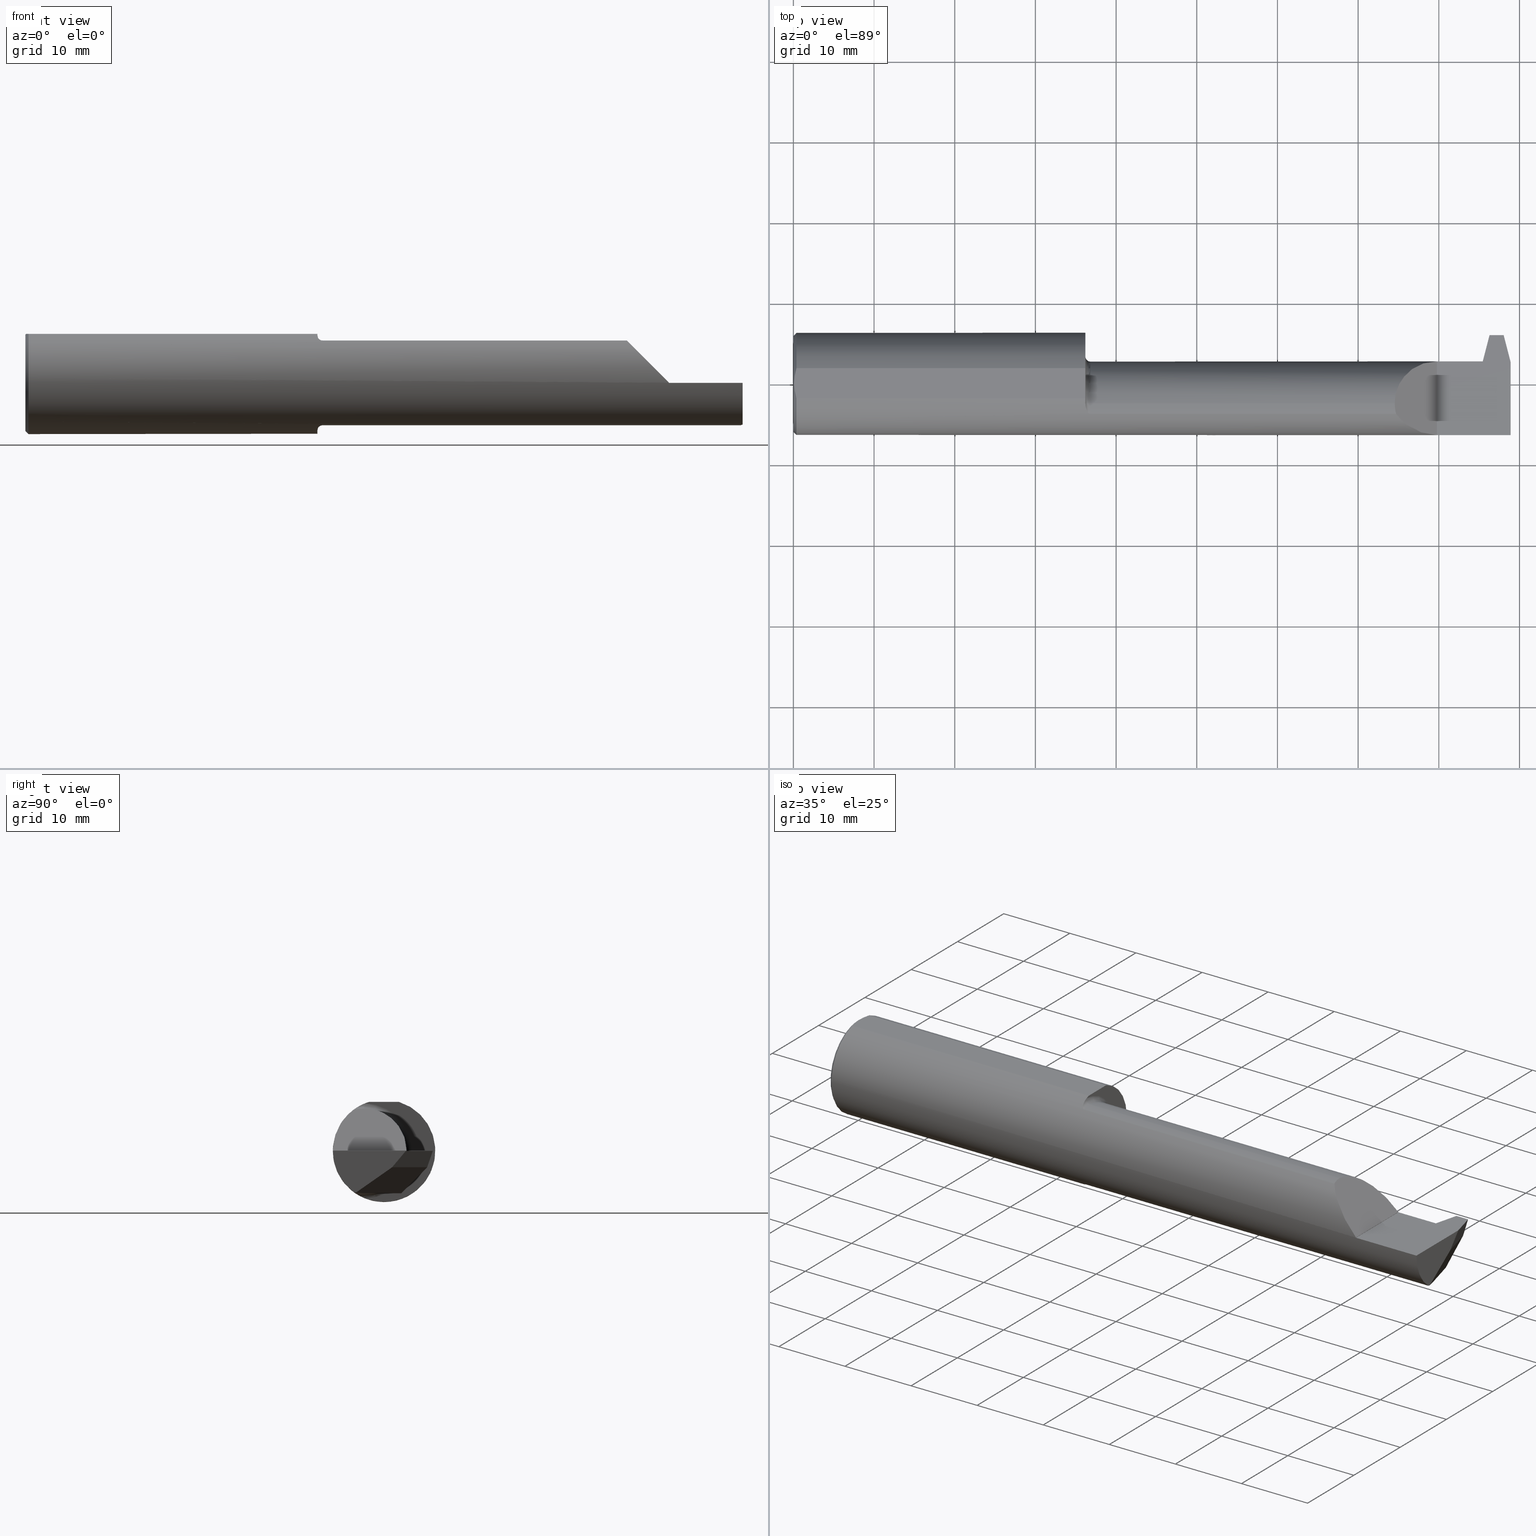
[diagram: canonical four-view strip — front | top / right | iso, engineering-drawing reading convention]
A machine part, canonical four-view strip (front | top / right | iso — engineering-drawing reading convention). The complete STEP part file that produces these views, byte-faithful:
ISO-10303-21;
HEADER;
FILE_DESCRIPTION (( 'STEP AP203' ),
    '1' );
FILE_NAME ('231081-FAT4902000-5.STEP',
    '2024-05-24T15:40:58',
    ( '' ),
    ( '' ),
    'SwSTEP 2.0',
    'SolidWorks 2022',
    '' );
FILE_SCHEMA (( 'CONFIG_CONTROL_DESIGN' ));
ENDSEC;

DATA;
#1 = CARTESIAN_POINT ( 'NONE',  ( 3.435081469452306191, 0.8665721776455815872, 0.3232974061439807811 ) ) ;
#2 = ORIENTED_EDGE ( 'NONE', *, *, #686, .F. ) ;
#3 = CARTESIAN_POINT ( 'NONE',  ( 0.01500000000000024925, 0.07331916529803100824, 0.2388500000000000345 ) ) ;
#4 = CYLINDRICAL_SURFACE ( 'NONE', #804, 0.2070000000000000173 ) ;
#5 = LINE ( 'NONE', #866, #589 ) ;
#6 = VECTOR ( 'NONE', #195, 39.37007874015748143 ) ;
#7 = ORIENTED_EDGE ( 'NONE', *, *, #380, .T. ) ;
#8 = CARTESIAN_POINT ( 'NONE',  ( 1.424999999999999600, 0.07331916529803114702, 0.2388499999999999790 ) ) ;
#9 = APPROVAL_DATE_TIME ( #371, #255 ) ;
#10 = ORIENTED_EDGE ( 'NONE', *, *, #611, .F. ) ;
#11 = VECTOR ( 'NONE', #416, 39.37007874015748143 ) ;
#12 = PLANE ( 'NONE',  #576 ) ;
#13 = EDGE_CURVE ( 'NONE', #912, #92, #97, .T. ) ;
#14 =( CONVERSION_BASED_UNIT ( 'INCH', #591 ) LENGTH_UNIT ( ) NAMED_UNIT ( #402 ) );
#15 = ADVANCED_FACE ( 'NONE', ( #707 ), #338, .F. ) ;
#16 = COORDINATED_UNIVERSAL_TIME_OFFSET ( 8, 0, .BEHIND. ) ;
#17 = EDGE_LOOP ( 'NONE', ( #257, #205, #894, #669, #826, #377 ) ) ;
#18 = VERTEX_POINT ( 'NONE', #126 ) ;
#19 = CARTESIAN_POINT ( 'NONE',  ( 3.356905148354086155, 0.09266310188211818177, -0.08326934739156952037 ) ) ;
#20 = ORIENTED_EDGE ( 'NONE', *, *, #381, .F. ) ;
#21 = DIRECTION ( 'NONE',  ( 1.000000000000000000, -0.000000000000000000, -0.000000000000000000 ) ) ;
#22 = AXIS2_PLACEMENT_3D ( 'NONE', #920, #476, #407 ) ;
#23 =( NAMED_UNIT ( * ) PLANE_ANGLE_UNIT ( ) SI_UNIT ( $, .RADIAN. ) );
#24 = ORIENTED_EDGE ( 'NONE', *, *, #449, .T. ) ;
#25 = EDGE_LOOP ( 'NONE', ( #114, #598, #175, #587 ) ) ;
#26 = DIRECTION ( 'NONE',  ( 0.2055210070593990190, 0.000000000000000000, 0.9786527043120508695 ) ) ;
#27 = EDGE_LOOP ( 'NONE', ( #763, #594, #461 ) ) ;
#28 = CARTESIAN_POINT ( 'NONE',  ( 3.500000000000000000, -0.1363579360798589379, -0.2031947907469819348 ) ) ;
#29 = PERSON_AND_ORGANIZATION ( #374, #130 ) ;
#30 = CIRCLE ( 'NONE', #120, 0.2069999999999999618 ) ;
#31 = EDGE_CURVE ( 'NONE', #554, #751, #410, .T. ) ;
#32 = ORIENTED_EDGE ( 'NONE', *, *, #861, .T. ) ;
#33 = CARTESIAN_POINT ( 'NONE',  ( 3.331941729141267849, 0.1042368812308372000, -0.05692852818758709771 ) ) ;
#34 = AXIS2_PLACEMENT_3D ( 'NONE', #225, #506, #70 ) ;
#35 = PERSON_AND_ORGANIZATION_ROLE ( 'classification_officer' ) ;
#36 = ORIENTED_EDGE ( 'NONE', *, *, #81, .T. ) ;
#37 = EDGE_LOOP ( 'NONE', ( #648, #475, #241, #307, #202, #245, #60, #941 ) ) ;
#38 = CARTESIAN_POINT ( 'NONE',  ( 3.488377121087911537, -0.09685000000000003328, -0.2069999999999999341 ) ) ;
#39 = DIRECTION ( 'NONE',  ( 1.000000000000000000, 0.000000000000000000, 0.000000000000000000 ) ) ;
#40 = ORIENTED_EDGE ( 'NONE', *, *, #13, .T. ) ;
#41 = VERTEX_POINT ( 'NONE', #344 ) ;
#42 = CARTESIAN_POINT ( 'NONE',  ( 3.139999999999999680, 0.2999999999999999889, -6.123031769111886291E-17 ) ) ;
#43 = CARTESIAN_POINT ( 'NONE',  ( 1.425056834358316094, -0.09685000000000180964, 0.2303152187763536640 ) ) ;
#44 = AXIS2_PLACEMENT_3D ( 'NONE', #260, #39, #53 ) ;
#45 = CC_DESIGN_APPROVAL ( #559, ( #623 ) ) ;
#46 = DIRECTION ( 'NONE',  ( 0.000000000000000000, -1.000000000000000000, 0.000000000000000000 ) ) ;
#47 = EDGE_CURVE ( 'NONE', #185, #372, #634, .T. ) ;
#48 = VECTOR ( 'NONE', #220, 39.37007874015748143 ) ;
#49 = DIRECTION ( 'NONE',  ( -0.000000000000000000, 0.8191520442889890230, 0.5735764363510500452 ) ) ;
#50 = EDGE_CURVE ( 'NONE', #758, #18, #266, .T. ) ;
#51 = DIRECTION ( 'NONE',  ( -1.000000000000000000, -0.000000000000000000, -0.000000000000000000 ) ) ;
#52 = CARTESIAN_POINT ( 'NONE',  ( 3.397000000000001130, 0.2381499999999843742, -6.123031769111886291E-17 ) ) ;
#53 = DIRECTION ( 'NONE',  ( 0.000000000000000000, 0.000000000000000000, -1.000000000000000000 ) ) ;
#54 = AXIS2_PLACEMENT_3D ( 'NONE', #630, #484, #775 ) ;
#55 = DIRECTION ( 'NONE',  ( -1.000000000000000000, -0.000000000000000000, -0.000000000000000000 ) ) ;
#56 = DIRECTION ( 'NONE',  ( 0.000000000000000000, -0.6426264403010661930, -0.7661796514042774620 ) ) ;
#57 = FACE_OUTER_BOUND ( 'NONE', #268, .T. ) ;
#58 = LINE ( 'NONE', #203, #650 ) ;
#59 = AXIS2_PLACEMENT_3D ( 'NONE', #510, #803, #163 ) ;
#60 = ORIENTED_EDGE ( 'NONE', *, *, #553, .T. ) ;
#61 = DIRECTION ( 'NONE',  ( 0.000000000000000000, 0.000000000000000000, 1.000000000000000000 ) ) ;
#62 = CONICAL_SURFACE ( 'NONE', #714, 0.2498499999999999888, 0.7853981633974460586 ) ;
#63 = CARTESIAN_POINT ( 'NONE',  ( 3.488377121087911537, -0.09685000000000003328, -0.2069999999999999341 ) ) ;
#64 = EDGE_LOOP ( 'NONE', ( #171, #517, #569, #683 ) ) ;
#65 = FACE_OUTER_BOUND ( 'NONE', #816, .T. ) ;
#66 = EDGE_CURVE ( 'NONE', #687, #92, #501, .T. ) ;
#67 = DIRECTION ( 'NONE',  ( -1.000000000000000000, -8.537024980200908593E-16, 5.140971450490672194E-31 ) ) ;
#68 = ORIENTED_EDGE ( 'NONE', *, *, #188, .T. ) ;
#69 = DIRECTION ( 'NONE',  ( 1.000000000000000000, -8.537024980200913523E-16, -0.000000000000000000 ) ) ;
#70 = DIRECTION ( 'NONE',  ( 0.000000000000000000, 0.000000000000000000, -1.000000000000000000 ) ) ;
#71 = CARTESIAN_POINT ( 'NONE',  ( 3.356905148354086155, 0.1101499999999999702, -1.200550468588724023E-18 ) ) ;
#72 = ADVANCED_FACE ( 'NONE', ( #424 ), #787, .F. ) ;
#73 = ORIENTED_EDGE ( 'NONE', *, *, #872, .F. ) ;
#74 = AXIS2_PLACEMENT_3D ( 'NONE', #315, #373, #26 ) ;
#75 = CARTESIAN_POINT ( 'NONE',  ( 1.424999999999999600, 0.1101499999999999979, -6.123031769111886291E-17 ) ) ;
#76 = CARTESIAN_POINT ( 'NONE',  ( 3.500000000000000000, -0.09685000000000001941, -0.2069999999999999341 ) ) ;
#77 = ORIENTED_EDGE ( 'NONE', *, *, #189, .F. ) ;
#78 = CARTESIAN_POINT ( 'NONE',  ( 1.425056834358315649, -0.09684999999998002151, -0.2303152187763627956 ) ) ;
#79 = APPROVAL_ROLE ( '' ) ;
#80 = ORIENTED_EDGE ( 'NONE', *, *, #647, .T. ) ;
#81 = EDGE_CURVE ( 'NONE', #468, #499, #285, .T. ) ;
#82 = DIRECTION ( 'NONE',  ( 1.000000000000000000, -0.000000000000000000, -0.000000000000000000 ) ) ;
#83 = EDGE_CURVE ( 'NONE', #913, #110, #453, .T. ) ;
#84 = VECTOR ( 'NONE', #637, 39.37007874015748143 ) ;
#85 = PLANE ( 'NONE',  #59 ) ;
#86 = APPLICATION_PROTOCOL_DEFINITION ( 'international standard', 'config_control_design', 1994, #104 ) ;
#87 = ORIENTED_EDGE ( 'NONE', *, *, #396, .T. ) ;
#88 = DIRECTION ( 'NONE',  ( 0.000000000000000000, 0.000000000000000000, -1.000000000000000000 ) ) ;
#89 = CARTESIAN_POINT ( 'NONE',  ( 3.500000000000000000, 0.2999999999999999889, -6.123031769111886291E-17 ) ) ;
#90 = CARTESIAN_POINT ( 'NONE',  ( 1.424999999999999600, -0.09282883324728960495, 0.2319651487140835522 ) ) ;
#91 = PERSON_AND_ORGANIZATION ( #374, #130 ) ;
#92 = VERTEX_POINT ( 'NONE', #868 ) ;
#93 = ORIENTED_EDGE ( 'NONE', *, *, #553, .F. ) ;
#94 = CARTESIAN_POINT ( 'NONE',  ( 1.449999999999999512, -0.09685000000000000553, 0.000000000000000000 ) ) ;
#95 = ORIENTED_EDGE ( 'NONE', *, *, #852, .T. ) ;
#96 = CARTESIAN_POINT ( 'NONE',  ( 3.139999999999999680, -0.2498463527850666721, 0.001349999999998470696 ) ) ;
#97 = CIRCLE ( 'NONE', #700, 0.2070000000000000173 ) ;
#98 = PERSON_AND_ORGANIZATION_ROLE ( 'creator' ) ;
#99 = ORIENTED_EDGE ( 'NONE', *, *, #849, .F. ) ;
#100 = ORIENTED_EDGE ( 'NONE', *, *, #259, .F. ) ;
#101 = EDGE_LOOP ( 'NONE', ( #383, #572, #681, #604, #174 ) ) ;
#102 = CARTESIAN_POINT ( 'NONE',  ( 3.139999999999999680, 0.2999999999999999889, -6.123031769111886291E-17 ) ) ;
#103 = VECTOR ( 'NONE', #568, 39.37007874015748143 ) ;
#104 = APPLICATION_CONTEXT ( 'configuration controlled 3d designs of mechanical parts and assemblies' ) ;
#105 = DATE_TIME_ROLE ( 'creation_date' ) ;
#106 = EDGE_CURVE ( 'NONE', #744, #372, #293, .T. ) ;
#107 = ORIENTED_EDGE ( 'NONE', *, *, #849, .T. ) ;
#108 = PLANE ( 'NONE',  #727 ) ;
#109 = CARTESIAN_POINT ( 'NONE',  ( 1.426742824673065346, -0.1177739016850215953, -0.2206342839570611114 ) ) ;
#110 = VERTEX_POINT ( 'NONE', #875 ) ;
#111 = FACE_OUTER_BOUND ( 'NONE', #621, .T. ) ;
#112 = CARTESIAN_POINT ( 'NONE',  ( 1.425362334957245736, -0.1076058103047661529, 0.2257922861036847917 ) ) ;
#113 = EDGE_CURVE ( 'NONE', #845, #523, #638, .T. ) ;
#114 = ORIENTED_EDGE ( 'NONE', *, *, #839, .T. ) ;
#115 = CARTESIAN_POINT ( 'NONE',  ( 3.500000000000000000, 0.06262552473439618461, -0.05252660777180581664 ) ) ;
#116 = EDGE_CURVE ( 'NONE', #491, #724, #437, .T. ) ;
#117 = CARTESIAN_POINT ( 'NONE',  ( 1.438098364138955976, -0.1431579111149089700, -0.2047855815810832314 ) ) ;
#118 = LOCAL_TIME ( 8, 40, 58.00000000000000000, #16 ) ;
#119 = DIRECTION ( 'NONE',  ( 0.000000000000000000, 0.000000000000000000, -1.000000000000000000 ) ) ;
#120 = AXIS2_PLACEMENT_3D ( 'NONE', #415, #561, #916 ) ;
#121 = AXIS2_PLACEMENT_3D ( 'NONE', #328, #909, #258 ) ;
#122 = CIRCLE ( 'NONE', #433, 0.2070000000000000173 ) ;
#123 = LINE ( 'NONE', #694, #333 ) ;
#124 =( BOUNDED_CURVE ( )  B_SPLINE_CURVE ( 3, ( #38, #688, #526, #28 ),
 .UNSPECIFIED., .F., .F. ) 
 B_SPLINE_CURVE_WITH_KNOTS ( ( 4, 4 ),
 ( 0.6108652381980200774, 0.8029030024378224217 ),
 .UNSPECIFIED. ) 
 CURVE ( )  GEOMETRIC_REPRESENTATION_ITEM ( )  RATIONAL_B_SPLINE_CURVE ( ( 1.000000000000000000, 0.9969291518527050311, 0.9969291518527050311, 1.000000000000000000 ) ) 
 REPRESENTATION_ITEM ( '' )  );
#125 = CC_DESIGN_PERSON_AND_ORGANIZATION_ASSIGNMENT ( #244, #603, ( #832 ) ) ;
#126 = CARTESIAN_POINT ( 'NONE',  ( 0.000000000000000000, 0.000000000000000000, -0.2348499999999998089 ) ) ;
#127 = LINE ( 'NONE', #776, #504 ) ;
#128 = CARTESIAN_POINT ( 'NONE',  ( 1.447020367144870701, -0.1494886164171398968, 0.2001953447552894949 ) ) ;
#129 = EDGE_CURVE ( 'NONE', #791, #252, #708, .T. ) ;
#130 = ORGANIZATION ( 'UNSPECIFIED', 'UNSPECIFIED', '' ) ;
#131 = CARTESIAN_POINT ( 'NONE',  ( 3.463839195668919402, 0.2834708276858401432, -0.007132963250969018114 ) ) ;
#132 = AXIS2_PLACEMENT_3D ( 'NONE', #493, #784, #135 ) ;
#133 = CARTESIAN_POINT ( 'NONE',  ( 1.424999999999999600, -0.09685000000000000553, 0.2070000000000000173 ) ) ;
#134 = ORIENTED_EDGE ( 'NONE', *, *, #396, .F. ) ;
#135 = DIRECTION ( 'NONE',  ( 0.000000000000000000, 0.000000000000000000, -1.000000000000000000 ) ) ;
#136 = DIRECTION ( 'NONE',  ( -0.3464677099351670120, 0.000000000000000000, -0.9380618987957461963 ) ) ;
#137 = ORIENTED_EDGE ( 'NONE', *, *, #580, .T. ) ;
#138 = DIRECTION ( 'NONE',  ( 0.000000000000000000, -0.7071067811865514585, 0.7071067811865435759 ) ) ;
#139 = LINE ( 'NONE', #280, #577 ) ;
#140 = CARTESIAN_POINT ( 'NONE',  ( 3.376905148354085728, 4.760531160169975351, 3.187995656012617918 ) ) ;
#141 = ORIENTED_EDGE ( 'NONE', *, *, #380, .F. ) ;
#142 = CIRCLE ( 'NONE', #629, 0.2348499999999998089 ) ;
#143 = CARTESIAN_POINT ( 'NONE',  ( 2.934349999999999348, -0.09685000000000000553, 0.2070000000000000173 ) ) ;
#144 = EDGE_CURVE ( 'NONE', #491, #468, #412, .T. ) ;
#145 = CARTESIAN_POINT ( 'NONE',  ( 1.449999999999999512, -0.1494886164171398968, 0.2001953447552894949 ) ) ;
#146 = EDGE_LOOP ( 'NONE', ( #389, #663, #222, #729 ) ) ;
#147 =( BOUNDED_CURVE ( )  B_SPLINE_CURVE ( 3, ( #864, #294, #425, #143 ),
 .UNSPECIFIED., .F., .T. ) 
 B_SPLINE_CURVE_WITH_KNOTS ( ( 4, 4 ),
 ( 4.718910765747612146, 6.283185307179586232 ),
 .UNSPECIFIED. ) 
 CURVE ( )  GEOMETRIC_REPRESENTATION_ITEM ( )  RATIONAL_B_SPLINE_CURVE ( ( 1.000000000000000000, 0.8062725446327766443, 0.8062725446327766443, 1.000000000000000000 ) ) 
 REPRESENTATION_ITEM ( '' )  );
#148 = CARTESIAN_POINT ( 'NONE',  ( 0.007978205860497812260, -0.04939097055354201710, 0.2388499999999999790 ) ) ;
#149 = CARTESIAN_POINT ( 'NONE',  ( 3.359999999999999876, -0.09685000000000000553, 0.000000000000000000 ) ) ;
#150 = CARTESIAN_POINT ( 'NONE',  ( 3.139999999999999680, 0.2999999999999999889, -6.123031769111886291E-17 ) ) ;
#151 = LINE ( 'NONE', #881, #464 ) ;
#152 = DIRECTION ( 'NONE',  ( 0.000000000000000000, -0.2055210070593990190, -0.9786527043120508695 ) ) ;
#153 = ORIENTED_EDGE ( 'NONE', *, *, #689, .T. ) ;
#154 = EDGE_CURVE ( 'NONE', #738, #530, #127, .T. ) ;
#155 = CARTESIAN_POINT ( 'NONE',  ( 1.424999999999999600, -0.09685000000000000553, 0.000000000000000000 ) ) ;
#156 = DIRECTION ( 'NONE',  ( -0.000000000000000000, 5.769128905172341190E-16, 1.000000000000000000 ) ) ;
#157 = PERSON_AND_ORGANIZATION ( #374, #130 ) ;
#158 = ORIENTED_EDGE ( 'NONE', *, *, #296, .F. ) ;
#159 = ORIENTED_EDGE ( 'NONE', *, *, #356, .F. ) ;
#160 = LINE ( 'NONE', #304, #942 ) ;
#161 = DIRECTION ( 'NONE',  ( -0.000000000000000000, 0.000000000000000000, 1.000000000000000000 ) ) ;
#162 = AXIS2_PLACEMENT_3D ( 'NONE', #404, #925, #911 ) ;
#163 = DIRECTION ( 'NONE',  ( -1.000000000000000000, 0.000000000000000000, 0.000000000000000000 ) ) ;
#164 = APPROVAL_PERSON_ORGANIZATION ( #29, #559, #825 ) ;
#165 = COORDINATED_UNIVERSAL_TIME_OFFSET ( 8, 0, .BEHIND. ) ;
#166 = ORIENTED_EDGE ( 'NONE', *, *, #748, .F. ) ;
#167 = ORIENTED_EDGE ( 'NONE', *, *, #342, .T. ) ;
#168 = AXIS2_PLACEMENT_3D ( 'NONE', #323, #183, #234 ) ;
#169 = CARTESIAN_POINT ( 'NONE',  ( 2.941154655244710092, -0.1494886164171397303, 0.2001953447552895782 ) ) ;
#170 = EDGE_CURVE ( 'NONE', #368, #913, #428, .T. ) ;
#171 = ORIENTED_EDGE ( 'NONE', *, *, #13, .F. ) ;
#172 = FACE_OUTER_BOUND ( 'NONE', #64, .T. ) ;
#173 = CARTESIAN_POINT ( 'NONE',  ( 0.000000000000000000, 0.000000000000000000, 0.000000000000000000 ) ) ;
#174 = ORIENTED_EDGE ( 'NONE', *, *, #31, .F. ) ;
#175 = ORIENTED_EDGE ( 'NONE', *, *, #129, .T. ) ;
#176 = CARTESIAN_POINT ( 'NONE',  ( 3.500000000000000000, -0.2498499999999999055, -6.123031769111886291E-17 ) ) ;
#177 = VECTOR ( 'NONE', #224, 39.37007874015748143 ) ;
#178 = EDGE_CURVE ( 'NONE', #41, #468, #914, .T. ) ;
#179 = CALENDAR_DATE ( 2024, 24, 5 ) ;
#180 = ORIENTED_EDGE ( 'NONE', *, *, #170, .T. ) ;
#181 = AXIS2_PLACEMENT_3D ( 'NONE', #332, #639, #857 ) ;
#182 = VERTEX_POINT ( 'NONE', #269 ) ;
#183 = DIRECTION ( 'NONE',  ( -0.9116190025285701992, 0.2357607042868802294, -0.3367011798954214763 ) ) ;
#184 = VECTOR ( 'NONE', #586, 39.37007874015748143 ) ;
#185 = VERTEX_POINT ( 'NONE', #411 ) ;
#186 = DIRECTION ( 'NONE',  ( -0.000000000000000000, 0.000000000000000000, -1.000000000000000000 ) ) ;
#187 = CARTESIAN_POINT ( 'NONE',  ( 1.439875278575876827, -0.1451430425960587856, 0.2033773245914853312 ) ) ;
#188 = EDGE_CURVE ( 'NONE', #18, #758, #142, .T. ) ;
#189 = EDGE_CURVE ( 'NONE', #252, #908, #850, .T. ) ;
#190 = ORIENTED_EDGE ( 'NONE', *, *, #861, .F. ) ;
#191 = DIRECTION ( 'NONE',  ( -1.000000000000000000, -0.000000000000000000, -0.000000000000000000 ) ) ;
#192 = CARTESIAN_POINT ( 'NONE',  ( 1.433603512678596648, -0.1369436784278610930, -0.2090374349053132075 ) ) ;
#193 = DIRECTION ( 'NONE',  ( -1.000000000000000000, -0.000000000000000000, -0.000000000000000000 ) ) ;
#194 = CARTESIAN_POINT ( 'NONE',  ( 1.438126455499453282, -0.1431912086441300691, 0.2047622941394796059 ) ) ;
#195 = DIRECTION ( 'NONE',  ( -0.000000000000000000, 1.000000000000000000, -5.769128905172341190E-16 ) ) ;
#196 = EDGE_CURVE ( 'NONE', #815, #331, #30, .T. ) ;
#197 = VECTOR ( 'NONE', #446, 39.37007874015748143 ) ;
#198 = CARTESIAN_POINT ( 'NONE',  ( 3.400103411012275423, 0.2501499999999999835, 0.000000000000000000 ) ) ;
#199 = EDGE_CURVE ( 'NONE', #319, #554, #200, .T. ) ;
#200 = LINE ( 'NONE', #276, #819 ) ;
#201 = FACE_OUTER_BOUND ( 'NONE', #888, .T. ) ;
#202 = ORIENTED_EDGE ( 'NONE', *, *, #66, .F. ) ;
#203 = CARTESIAN_POINT ( 'NONE',  ( 3.359999999999999876, 0.1422105680985477349, -0.04578723642496029811 ) ) ;
#204 = DIRECTION ( 'NONE',  ( 1.000000000000000000, 0.000000000000000000, 0.000000000000000000 ) ) ;
#205 = ORIENTED_EDGE ( 'NONE', *, *, #480, .F. ) ;
#206 = AXIS2_PLACEMENT_3D ( 'NONE', #632, #915, #550 ) ;
#207 = CARTESIAN_POINT ( 'NONE',  ( 1.449999999999999512, -0.09685000000000000553, 0.000000000000000000 ) ) ;
#208 = CC_DESIGN_APPROVAL ( #255, ( #573 ) ) ;
#209 = DIRECTION ( 'NONE',  ( -0.2503800040544218453, 0.9681476403781128504, 7.367790809985756574E-14 ) ) ;
#210 = ORIENTED_EDGE ( 'NONE', *, *, #144, .F. ) ;
#211 = ADVANCED_FACE ( 'NONE', ( #635 ), #923, .T. ) ;
#212 = CARTESIAN_POINT ( 'NONE',  ( 0.008000051362617503076, 0.04946541355466492484, 0.2388499999999999790 ) ) ;
#213 =( BOUNDED_CURVE ( )  B_SPLINE_CURVE ( 3, ( #251, #397, #386, #885 ),
 .UNSPECIFIED., .F., .F. ) 
 B_SPLINE_CURVE_WITH_KNOTS ( ( 4, 4 ),
 ( 0.000000000000000000, 0.2571164291075364039 ),
 .UNSPECIFIED. ) 
 CURVE ( )  GEOMETRIC_REPRESENTATION_ITEM ( )  RATIONAL_B_SPLINE_CURVE ( ( 1.000000000000000000, 0.9944985117787173978, 0.9944985117787173978, 1.000000000000000000 ) ) 
 REPRESENTATION_ITEM ( '' )  );
#214 = B_SPLINE_CURVE_WITH_KNOTS ( 'NONE', 3,
 ( #271, #847, #109, #347, #192, #117, #486, #628, #398, #917 ),
 .UNSPECIFIED., .F., .F.,
 ( 4, 2, 2, 2, 4 ),
 ( 0.0001090155944137358965, 0.0009865223614607986687, 0.001425275744984329370, 0.001644652436746094721, 0.001864029128507859855 ),
 .UNSPECIFIED. ) ;
#215 = FACE_OUTER_BOUND ( 'NONE', #532, .T. ) ;
#216 = EDGE_CURVE ( 'NONE', #499, #182, #58, .T. ) ;
#217 = CARTESIAN_POINT ( 'NONE',  ( 3.356905148354086155, 4.760531160169975351, 3.187995656012617918 ) ) ;
#218 = EDGE_LOOP ( 'NONE', ( #232, #840, #247, #322 ) ) ;
#219 = VECTOR ( 'NONE', #560, 39.37007874015748143 ) ;
#220 = DIRECTION ( 'NONE',  ( 1.000000000000000000, 0.000000000000000000, 0.000000000000000000 ) ) ;
#221 = DIRECTION ( 'NONE',  ( 0.000000000000000000, 0.2055210070593990190, 0.9786527043120508695 ) ) ;
#222 = ORIENTED_EDGE ( 'NONE', *, *, #284, .T. ) ;
#223 = AXIS2_PLACEMENT_3D ( 'NONE', #367, #355, #643 ) ;
#224 = DIRECTION ( 'NONE',  ( -1.000000000000000000, -0.000000000000000000, -0.000000000000000000 ) ) ;
#225 = CARTESIAN_POINT ( 'NONE',  ( 3.500000000000000000, 0.000000000000000000, 0.000000000000000000 ) ) ;
#226 = CARTESIAN_POINT ( 'NONE',  ( 1.424999999999999600, 0.000000000000000000, 0.000000000000000000 ) ) ;
#227 = EDGE_CURVE ( 'NONE', #672, #756, #897, .T. ) ;
#228 = VERTEX_POINT ( 'NONE', #52 ) ;
#229 = DIRECTION ( 'NONE',  ( 0.000000000000000000, 0.000000000000000000, -1.000000000000000000 ) ) ;
#230 = DIRECTION ( 'NONE',  ( -0.2503800040544567063, -0.9681476403781038576, 5.646906373630536433E-16 ) ) ;
#231 = SECURITY_CLASSIFICATION_LEVEL ( 'unclassified' ) ;
#232 = ORIENTED_EDGE ( 'NONE', *, *, #919, .T. ) ;
#233 = CARTESIAN_POINT ( 'NONE',  ( 3.407229123799221160, 0.2106037909368270455, -0.07999999999998201605 ) ) ;
#234 = DIRECTION ( 'NONE',  ( -0.3464677099351788914, 0.000000000000000000, 0.9380618987957418664 ) ) ;
#235 = PLANE ( 'NONE',  #761 ) ;
#236 = DIRECTION ( 'NONE',  ( 1.000000000000000000, 0.000000000000000000, 0.000000000000000000 ) ) ;
#237 = ORIENTED_EDGE ( 'NONE', *, *, #717, .T. ) ;
#238 = EDGE_LOOP ( 'NONE', ( #666, #166 ) ) ;
#239 = EDGE_CURVE ( 'NONE', #756, #319, #482, .T. ) ;
#240 = CARTESIAN_POINT ( 'NONE',  ( 1.424999999999999600, -0.09282883324728960495, -0.2319651487140835522 ) ) ;
#241 = ORIENTED_EDGE ( 'NONE', *, *, #106, .F. ) ;
#242 = PLANE ( 'NONE',  #361 ) ;
#243 = APPROVAL_PERSON_ORGANIZATION ( #541, #255, #79 ) ;
#244 = PERSON_AND_ORGANIZATION ( #374, #130 ) ;
#245 = ORIENTED_EDGE ( 'NONE', *, *, #717, .F. ) ;
#246 = AXIS2_PLACEMENT_3D ( 'NONE', #265, #349, #274 ) ;
#247 = ORIENTED_EDGE ( 'NONE', *, *, #239, .T. ) ;
#248 = VECTOR ( 'NONE', #49, 39.37007874015748143 ) ;
#249 = EDGE_CURVE ( 'NONE', #845, #182, #489, .T. ) ;
#250 = ORIENTED_EDGE ( 'NONE', *, *, #852, .F. ) ;
#251 = CARTESIAN_POINT ( 'NONE',  ( 2.934349999999999348, -0.09685000000000000553, 0.2070000000000000173 ) ) ;
#252 = VERTEX_POINT ( 'NONE', #692 ) ;
#253 = ORIENTED_EDGE ( 'NONE', *, *, #106, .T. ) ;
#254 = DIRECTION ( 'NONE',  ( -0.000000000000000000, 1.000000000000000000, -0.000000000000000000 ) ) ;
#255 = APPROVAL ( #837, 'UNSPECIFIED' ) ;
#256 = ORIENTED_EDGE ( 'NONE', *, *, #445, .F. ) ;
#257 = ORIENTED_EDGE ( 'NONE', *, *, #800, .F. ) ;
#258 = DIRECTION ( 'NONE',  ( 0.000000000000000000, 0.000000000000000000, -1.000000000000000000 ) ) ;
#259 = EDGE_CURVE ( 'NONE', #530, #546, #927, .T. ) ;
#260 = CARTESIAN_POINT ( 'NONE',  ( 1.449999999999999512, -0.09685000000000000553, 0.000000000000000000 ) ) ;
#261 = EDGE_LOOP ( 'NONE', ( #68, #466 ) ) ;
#262 = ORIENTED_EDGE ( 'NONE', *, *, #748, .T. ) ;
#263 = CARTESIAN_POINT ( 'NONE',  ( 1.424999999999999600, -0.09685000000000000553, 0.000000000000000000 ) ) ;
#264 = CARTESIAN_POINT ( 'NONE',  ( 3.359999999999999876, 0.1101499999999999979, 0.000000000000000000 ) ) ;
#265 = CARTESIAN_POINT ( 'NONE',  ( 1.424999999999999600, -0.09685000000000000553, 0.000000000000000000 ) ) ;
#266 = CIRCLE ( 'NONE', #583, 0.2348499999999998089 ) ;
#267 = CARTESIAN_POINT ( 'NONE',  ( 3.139999999999999680, -0.2498499999999999610, -6.123031769111885058E-17 ) ) ;
#268 = EDGE_LOOP ( 'NONE', ( #753, #838, #2 ) ) ;
#269 = CARTESIAN_POINT ( 'NONE',  ( 3.359999999999999876, -0.08802511886253058804, -0.2070000000000000451 ) ) ;
#270 = VECTOR ( 'NONE', #503, 39.37007874015748143 ) ;
#271 = CARTESIAN_POINT ( 'NONE',  ( 1.425056834358315649, -0.09684999999998002151, -0.2303152187763627956 ) ) ;
#272 = EDGE_CURVE ( 'NONE', #523, #431, #735, .T. ) ;
#273 = CARTESIAN_POINT ( 'NONE',  ( 3.363896949202450859, 0.1101499999999999702, 0.000000000000000000 ) ) ;
#274 = DIRECTION ( 'NONE',  ( 0.000000000000000000, 0.000000000000000000, 1.000000000000000000 ) ) ;
#275 = CARTESIAN_POINT ( 'NONE',  ( 1.433621117101776532, -0.1369789607150102007, 0.2090142917562188285 ) ) ;
#276 = CARTESIAN_POINT ( 'NONE',  ( 1.424999999999999600, 0.1000000000000000056, 0.2388499999999999790 ) ) ;
#277 = DIRECTION ( 'NONE',  ( 0.000000000000000000, 0.000000000000000000, -1.000000000000000000 ) ) ;
#278 = ORIENTED_EDGE ( 'NONE', *, *, #363, .T. ) ;
#279 = CARTESIAN_POINT ( 'NONE',  ( 1.424999999999999600, -0.08773859972320467715, -0.2067993771388008939 ) ) ;
#280 = CARTESIAN_POINT ( 'NONE',  ( 0.01500000000000024925, 0.000000000000000000, -0.2498499999999999888 ) ) ;
#281 = PLANE ( 'NONE',  #678 ) ;
#282 = ADVANCED_FACE ( 'NONE', ( #479 ), #548, .F. ) ;
#283 = EDGE_LOOP ( 'NONE', ( #326, #599, #237, #786, #674, #898, #392, #399, #327, #455, #615, #180, #153, #801, #883, #418 ) ) ;
#284 = EDGE_CURVE ( 'NONE', #436, #834, #343, .T. ) ;
#285 = LINE ( 'NONE', #279, #292 ) ;
#286 = CC_DESIGN_SECURITY_CLASSIFICATION ( #573, ( #623 ) ) ;
#287 = AXIS2_PLACEMENT_3D ( 'NONE', #899, #21, #537 ) ;
#288 = CARTESIAN_POINT ( 'NONE',  ( 3.465999999999998860, 0.2381499999999832640, 0.000000000000000000 ) ) ;
#289 = DIRECTION ( 'NONE',  ( 0.000000000000000000, 0.000000000000000000, 1.000000000000000000 ) ) ;
#290 = DIRECTION ( 'NONE',  ( 1.000000000000000000, 0.000000000000000000, 0.000000000000000000 ) ) ;
#291 = ORIENTED_EDGE ( 'NONE', *, *, #449, .F. ) ;
#292 = VECTOR ( 'NONE', #574, 39.37007874015748143 ) ;
#293 = LINE ( 'NONE', #584, #830 ) ;
#294 = CARTESIAN_POINT ( 'NONE',  ( 3.019370878431648197, 0.1093588693857058258, 0.1219791215683498214 ) ) ;
#295 = LOCAL_TIME ( 8, 40, 58.00000000000000000, #165 ) ;
#296 = EDGE_CURVE ( 'NONE', #110, #751, #938, .T. ) ;
#297 = DIRECTION ( 'NONE',  ( 0.000000000000000000, 0.000000000000000000, 1.000000000000000000 ) ) ;
#298 = ORIENTED_EDGE ( 'NONE', *, *, #50, .F. ) ;
#299 = CARTESIAN_POINT ( 'NONE',  ( 1.425056834358316094, -0.09685000000000180964, 0.2303152187763536640 ) ) ;
#300 = CARTESIAN_POINT ( 'NONE',  ( 3.139999999999999680, 0.1101455977792765162, 0.001349999999998470696 ) ) ;
#301 = AXIS2_PLACEMENT_3D ( 'NONE', #860, #204, #785 ) ;
#302 = DIRECTION ( 'NONE',  ( 0.000000000000000000, 0.000000000000000000, 1.000000000000000000 ) ) ;
#303 = VERTEX_POINT ( 'NONE', #697 ) ;
#304 = CARTESIAN_POINT ( 'NONE',  ( 3.397984886198644805, 0.2940908421892548530, 0.003487051252445820884 ) ) ;
#305 = CARTESIAN_POINT ( 'NONE',  ( 1.425056834358316094, -0.09685000000000180964, 0.2303152187763536640 ) ) ;
#306 = ORIENTED_EDGE ( 'NONE', *, *, #408, .T. ) ;
#307 = ORIENTED_EDGE ( 'NONE', *, *, #363, .F. ) ;
#308 = CARTESIAN_POINT ( 'NONE',  ( 3.376905148354085728, -0.08802511886253103213, -0.2070000000000002671 ) ) ;
#309 = VERTEX_POINT ( 'NONE', #299 ) ;
#310 = LINE ( 'NONE', #811, #527 ) ;
#311 = APPLICATION_PROTOCOL_DEFINITION ( 'international standard', 'config_control_design', 1994, #760 ) ;
#312 = EDGE_CURVE ( 'NONE', #815, #653, #151, .T. ) ;
#313 = ORIENTED_EDGE ( 'NONE', *, *, #259, .T. ) ;
#314 = ORIENTED_EDGE ( 'NONE', *, *, #188, .F. ) ;
#315 = CARTESIAN_POINT ( 'NONE',  ( 3.343896949202450841, 0.1101499999999999840, 0.000000000000000000 ) ) ;
#316 = ORIENTED_EDGE ( 'NONE', *, *, #445, .T. ) ;
#317 = LINE ( 'NONE', #401, #248 ) ;
#318 = COORDINATED_UNIVERSAL_TIME_OFFSET ( 8, 0, .BEHIND. ) ;
#319 = VERTEX_POINT ( 'NONE', #8 ) ;
#320 = AXIS2_PLACEMENT_3D ( 'NONE', #263, #846, #403 ) ;
#321 = VECTOR ( 'NONE', #254, 39.37007874015748143 ) ;
#322 = ORIENTED_EDGE ( 'NONE', *, *, #199, .T. ) ;
#323 = CARTESIAN_POINT ( 'NONE',  ( 3.427918530547692466, 4.957785273113056057, 3.187995656012617918 ) ) ;
#324 = APPROVAL ( #882, 'UNSPECIFIED' ) ;
#325 = DATE_TIME_ROLE ( 'classification_date' ) ;
#326 = ORIENTED_EDGE ( 'NONE', *, *, #312, .F. ) ;
#327 = ORIENTED_EDGE ( 'NONE', *, *, #919, .F. ) ;
#328 = CARTESIAN_POINT ( 'NONE',  ( 1.449999999999999512, -0.09685000000000000553, 0.000000000000000000 ) ) ;
#329 = ADVANCED_FACE ( 'NONE', ( #215 ), #62, .T. ) ;
#330 = LINE ( 'NONE', #618, #571 ) ;
#331 = VERTEX_POINT ( 'NONE', #575 ) ;
#332 = CARTESIAN_POINT ( 'NONE',  ( 1.424999999999999600, 0.000000000000000000, 0.000000000000000000 ) ) ;
#333 = VECTOR ( 'NONE', #705, 39.37007874015748143 ) ;
#334 = PLANE ( 'NONE',  #206 ) ;
#335 = DIRECTION ( 'NONE',  ( -1.600052266976115523E-14, -0.9455185755993169572, 0.3255681544571563668 ) ) ;
#336 = EDGE_CURVE ( 'NONE', #912, #605, #438, .T. ) ;
#337 = DIRECTION ( 'NONE',  ( -0.000000000000000000, 0.000000000000000000, 1.000000000000000000 ) ) ;
#338 = PLANE ( 'NONE',  #54 ) ;
#339 = DIRECTION ( 'NONE',  ( -0.2503800040544475469, 0.9681476403781061890, -5.547658068578852737E-16 ) ) ;
#340 = AXIS2_PLACEMENT_3D ( 'NONE', #936, #138, #654 ) ;
#341 = CARTESIAN_POINT ( 'NONE',  ( 1.426763007424506791, -0.1178923264691400657, 0.2205715275921999452 ) ) ;
#342 = EDGE_CURVE ( 'NONE', #607, #530, #513, .T. ) ;
#343 = CIRCLE ( 'NONE', #660, 0.2070000000000000173 ) ;
#344 = CARTESIAN_POINT ( 'NONE',  ( 3.356905148354086155, 0.09334967799372934083, -0.07999999999999067579 ) ) ;
#345 = DIRECTION ( 'NONE',  ( 0.000000000000000000, -0.8191520442889890230, -0.5735764363510501562 ) ) ;
#346 = CIRCLE ( 'NONE', #878, 0.02500000000000000486 ) ;
#347 = CARTESIAN_POINT ( 'NONE',  ( 1.431527936142122925, -0.1322095316791234987, -0.2120777013314375792 ) ) ;
#348 = CARTESIAN_POINT ( 'NONE',  ( 0.004000000000000164882, -8.838795650998935986E-18, 0.2388499999999999790 ) ) ;
#349 = DIRECTION ( 'NONE',  ( -1.000000000000000000, -0.000000000000000000, -0.000000000000000000 ) ) ;
#350 = AXIS2_PLACEMENT_3D ( 'NONE', #226, #879, #597 ) ;
#351 = LINE ( 'NONE', #494, #471 ) ;
#352 = ORIENTED_EDGE ( 'NONE', *, *, #336, .F. ) ;
#353 = FACE_OUTER_BOUND ( 'NONE', #871, .T. ) ;
#354 = ADVANCED_FACE ( 'NONE', ( #588 ), #4, .T. ) ;
#355 = DIRECTION ( 'NONE',  ( -1.000000000000000000, -0.000000000000000000, -0.000000000000000000 ) ) ;
#356 = EDGE_CURVE ( 'NONE', #791, #228, #792, .T. ) ;
#357 = VERTEX_POINT ( 'NONE', #432 ) ;
#358 = PLANE ( 'NONE',  #34 ) ;
#359 = CARTESIAN_POINT ( 'NONE',  ( 1.449999999999999512, -0.09684999999999996390, 0.2320000000000000118 ) ) ;
#360 = CARTESIAN_POINT ( 'NONE',  ( 3.139999999999999680, 0.2999999999999999889, 0.001349999999998470696 ) ) ;
#361 = AXIS2_PLACEMENT_3D ( 'NONE', #617, #613, #458 ) ;
#362 = CARTESIAN_POINT ( 'NONE',  ( 3.359999999999999876, -0.09685000000000001941, -0.2069999999999999341 ) ) ;
#363 = EDGE_CURVE ( 'NONE', #92, #744, #796, .T. ) ;
#364 = ORIENTED_EDGE ( 'NONE', *, *, #144, .T. ) ;
#365 = ADVANCED_FACE ( 'NONE', ( #353 ), #642, .T. ) ;
#366 = DIRECTION ( 'NONE',  ( 0.7071067811865490160, 0.000000000000000000, -0.7071067811865459074 ) ) ;
#367 = CARTESIAN_POINT ( 'NONE',  ( 3.139999999999999680, 0.000000000000000000, 0.000000000000000000 ) ) ;
#368 = VERTEX_POINT ( 'NONE', #802 ) ;
#369 = CARTESIAN_POINT ( 'NONE',  ( 2.988914555052664124, -0.2134487348307804178, 0.1524354449473349915 ) ) ;
#370 =( LENGTH_UNIT ( ) NAMED_UNIT ( * ) SI_UNIT ( $, .METRE. ) );
#371 = DATE_AND_TIME ( #732, #118 ) ;
#372 = VERTEX_POINT ( 'NONE', #932 ) ;
#373 = DIRECTION ( 'NONE',  ( -0.9786527043120508695, -3.055463344878836037E-15, 0.2055210070593990190 ) ) ;
#374 = PERSON ( 'UNSPECIFIED', 'UNSPECIFIED', 'UNSPECIFIED', ('UNSPECIFIED'), ('UNSPECIFIED'), ('UNSPECIFIED') ) ;
#375 = DIRECTION ( 'NONE',  ( 0.000000000000000000, -1.000000000000000000, 5.769128905172341190E-16 ) ) ;
#376 = EDGE_LOOP ( 'NONE', ( #352, #867, #715, #644 ) ) ;
#377 = ORIENTED_EDGE ( 'NONE', *, *, #940, .F. ) ;
#378 = PLANE ( 'NONE',  #74 ) ;
#379 = DIRECTION ( 'NONE',  ( 0.2503800040544200689, 0.9681476403781131834, 1.053219951395813768E-13 ) ) ;
#380 = EDGE_CURVE ( 'NONE', #18, #368, #139, .T. ) ;
#381 = EDGE_CURVE ( 'NONE', #912, #303, #147, .T. ) ;
#382 = EDGE_LOOP ( 'NONE', ( #99, #889, #400 ) ) ;
#383 = ORIENTED_EDGE ( 'NONE', *, *, #199, .F. ) ;
#384 = VECTOR ( 'NONE', #931, 39.37007874015748143 ) ;
#385 = CARTESIAN_POINT ( 'NONE',  ( 3.500000000000000000, 0.000000000000000000, 0.000000000000000000 ) ) ;
#386 = CARTESIAN_POINT ( 'NONE',  ( 2.936630766022310546, -0.1322833472790595488, 0.2047192339776893188 ) ) ;
#387 = PERSON_AND_ORGANIZATION ( #374, #130 ) ;
#388 = ORIENTED_EDGE ( 'NONE', *, *, #580, .F. ) ;
#389 = ORIENTED_EDGE ( 'NONE', *, *, #518, .F. ) ;
#390 = CIRCLE ( 'NONE', #223, 0.2498499999999999888 ) ;
#391 = CC_DESIGN_PERSON_AND_ORGANIZATION_ASSIGNMENT ( #91, #98, ( #623 ) ) ;
#392 = ORIENTED_EDGE ( 'NONE', *, *, #649, .T. ) ;
#393 = DIRECTION ( 'NONE',  ( -1.000000000000000000, 0.000000000000000000, 0.000000000000000000 ) ) ;
#394 = COORDINATED_UNIVERSAL_TIME_OFFSET ( 8, 0, .BEHIND. ) ;
#395 = ORIENTED_EDGE ( 'NONE', *, *, #538, .F. ) ;
#396 = EDGE_CURVE ( 'NONE', #457, #228, #651, .T. ) ;
#397 = CARTESIAN_POINT ( 'NONE',  ( 2.934349999999999348, -0.1146400775661692711, 0.2070000000000000451 ) ) ;
#398 = CARTESIAN_POINT ( 'NONE',  ( 1.447000154949638961, -0.1494886164171399523, -0.2001953447552893561 ) ) ;
#399 = ORIENTED_EDGE ( 'NONE', *, *, #940, .T. ) ;
#400 = ORIENTED_EDGE ( 'NONE', *, *, #249, .F. ) ;
#401 = CARTESIAN_POINT ( 'NONE',  ( 3.500000000000000000, 0.05060993510442058502, -0.07227847794072529697 ) ) ;
#402 = DIMENSIONAL_EXPONENTS ( 1.000000000000000000, 0.000000000000000000, 0.000000000000000000, 0.000000000000000000, 0.000000000000000000, 0.000000000000000000, 0.000000000000000000 ) ;
#403 = DIRECTION ( 'NONE',  ( 0.000000000000000000, 0.000000000000000000, -1.000000000000000000 ) ) ;
#404 = CARTESIAN_POINT ( 'NONE',  ( 3.500000000000000000, 0.000000000000000000, 0.000000000000000000 ) ) ;
#405 = TOROIDAL_SURFACE ( 'NONE', #121, 0.2320000000000000118, 0.02500000000000000139 ) ;
#406 = VECTOR ( 'NONE', #429, 39.37007874015748143 ) ;
#407 = DIRECTION ( 'NONE',  ( 0.000000000000000000, 0.000000000000000000, -1.000000000000000000 ) ) ;
#408 = EDGE_CURVE ( 'NONE', #653, #523, #122, .T. ) ;
#409 = DIRECTION ( 'NONE',  ( 0.9474803064293660926, -0.2450350680735413900, 0.2055210070593990190 ) ) ;
#410 = LINE ( 'NONE', #701, #749 ) ;
#411 = CARTESIAN_POINT ( 'NONE',  ( 3.376905148354085728, 0.09334967799372907715, -0.07999999999999095335 ) ) ;
#412 = CIRCLE ( 'NONE', #848, 0.2070000000000000173 ) ;
#413 = PLANE ( 'NONE',  #691 ) ;
#414 = LOCAL_TIME ( 8, 40, 58.00000000000000000, #318 ) ;
#415 = CARTESIAN_POINT ( 'NONE',  ( 3.500000000000000000, -0.09685000000000000553, 0.000000000000000000 ) ) ;
#416 = DIRECTION ( 'NONE',  ( -1.000000000000000000, -0.000000000000000000, -0.000000000000000000 ) ) ;
#417 = B_SPLINE_CURVE_WITH_KNOTS ( 'NONE', 3,
 ( #305, #886, #450, #90 ),
 .UNSPECIFIED., .F., .F.,
 ( 4, 4 ),
 ( 0.001785983475866871400, 0.001896829427359320941 ),
 .UNSPECIFIED. ) ;
#418 = ORIENTED_EDGE ( 'NONE', *, *, #686, .T. ) ;
#419 = ADVANCED_FACE ( 'NONE', ( #65 ), #358, .T. ) ;
#420 = CARTESIAN_POINT ( 'NONE',  ( 3.350128569999998973, 0.1730363691085627376, -0.1891037151198378119 ) ) ;
#421 = AXIS2_PLACEMENT_3D ( 'NONE', #1, #582, #136 ) ;
#422 = LINE ( 'NONE', #71, #633 ) ;
#423 = ORIENTED_EDGE ( 'NONE', *, *, #154, .T. ) ;
#424 = FACE_OUTER_BOUND ( 'NONE', #667, .T. ) ;
#425 = CARTESIAN_POINT ( 'NONE',  ( 2.934349999999999348, 0.02378168701430542764, 0.2070000000000000173 ) ) ;
#426 = B_SPLINE_CURVE_WITH_KNOTS ( 'NONE', 3,
 ( #240, #524, #818, #673 ),
 .UNSPECIFIED., .F., .F.,
 ( 4, 4 ),
 ( 0.000000000000000000, 0.0001090155944137358965 ),
 .UNSPECIFIED. ) ;
#427 = DIRECTION ( 'NONE',  ( -4.896636365183535087E-16, 0.5735764363510501562, -0.8191520442889890230 ) ) ;
#428 = CIRCLE ( 'NONE', #22, 0.2498499999999999888 ) ;
#429 = DIRECTION ( 'NONE',  ( -0.1200238624775757240, 0.3232146245633334414, 0.9386834284807350492 ) ) ;
#430 = CARTESIAN_POINT ( 'NONE',  ( 3.295463962035229066, 0.8304646351436201224, -0.07999999999992708777 ) ) ;
#431 = VERTEX_POINT ( 'NONE', #78 ) ;
#432 = CARTESIAN_POINT ( 'NONE',  ( 2.941154655244710092, -0.1494886164171397303, 0.2001953447552895782 ) ) ;
#433 = AXIS2_PLACEMENT_3D ( 'NONE', #207, #585, #873 ) ;
#434 = CARTESIAN_POINT ( 'NONE',  ( 3.343896949202450841, 0.1101499999999999840, 0.000000000000000000 ) ) ;
#435 = EDGE_CURVE ( 'NONE', #605, #357, #935, .T. ) ;
#436 = VERTEX_POINT ( 'NONE', #722 ) ;
#437 = LINE ( 'NONE', #565, #793 ) ;
#438 = LINE ( 'NONE', #360, #844 ) ;
#439 = PLANE ( 'NONE',  #539 ) ;
#440 = ORIENTED_EDGE ( 'NONE', *, *, #312, .T. ) ;
#441 = CARTESIAN_POINT ( 'NONE',  ( 0.01500000000000024925, 0.000000000000000000, 0.000000000000000000 ) ) ;
#442 = FACE_OUTER_BOUND ( 'NONE', #512, .T. ) ;
#443 = SHAPE_DEFINITION_REPRESENTATION ( #767, #765 ) ;
#444 = VERTEX_POINT ( 'NONE', #308 ) ;
#445 = EDGE_CURVE ( 'NONE', #185, #444, #595, .T. ) ;
#446 = DIRECTION ( 'NONE',  ( 0.000000000000000000, -0.8191520442889890230, -0.5735764363510501562 ) ) ;
#447 = VECTOR ( 'NONE', #477, 39.37007874015748143 ) ;
#448 = CARTESIAN_POINT ( 'NONE',  ( 3.326410051084569108, 0.09266310188211822341, -0.08326934739156954812 ) ) ;
#449 = EDGE_CURVE ( 'NONE', #457, #607, #160, .T. ) ;
#450 = CARTESIAN_POINT ( 'NONE',  ( 1.424999999999999600, -0.09417450869096335997, 0.2314266303976112160 ) ) ;
#451 = AXIS2_PLACEMENT_3D ( 'NONE', #94, #668, #519 ) ;
#452 = DATE_AND_TIME ( #902, #295 ) ;
#453 = B_SPLINE_CURVE_WITH_KNOTS ( 'NONE', 3,
 ( #3, #212, #721, #348 ),
 .UNSPECIFIED., .F., .F.,
 ( 4, 4 ),
 ( 0.005234717643982412377, 0.007106848166584642593 ),
 .UNSPECIFIED. ) ;
#454 = ORIENTED_EDGE ( 'NONE', *, *, #216, .F. ) ;
#455 = ORIENTED_EDGE ( 'NONE', *, *, #31, .T. ) ;
#456 = CARTESIAN_POINT ( 'NONE',  ( 3.356905148354086155, -0.08773859972320421918, -0.2067993771388023372 ) ) ;
#457 = VERTEX_POINT ( 'NONE', #233 ) ;
#458 = DIRECTION ( 'NONE',  ( -0.7071067811865459074, 0.000000000000000000, 0.7071067811865491270 ) ) ;
#459 = CALENDAR_DATE ( 2024, 24, 5 ) ;
#460 = EDGE_LOOP ( 'NONE', ( #930, #256, #137, #24 ) ) ;
#461 = ORIENTED_EDGE ( 'NONE', *, *, #649, .F. ) ;
#462 = CLOSED_SHELL ( 'NONE', ( #624, #877, #329, #365, #211, #354, #929, #72, #671, #698, #906, #419, #677, #492, #890, #516, #531, #534, #15, #590, #564, #706, #282, #478, #863, #551, #798, #817 ) ) ;
#463 = EDGE_LOOP ( 'NONE', ( #657, #250, #680, #934, #440, #306 ) ) ;
#464 = VECTOR ( 'NONE', #645, 39.37007874015748143 ) ;
#465 = DATE_AND_TIME ( #179, #772 ) ;
#466 = ORIENTED_EDGE ( 'NONE', *, *, #50, .T. ) ;
#467 = EDGE_CURVE ( 'NONE', #751, #368, #608, .T. ) ;
#468 = VERTEX_POINT ( 'NONE', #456 ) ;
#469 = FACE_OUTER_BOUND ( 'NONE', #376, .T. ) ;
#470 = FACE_OUTER_BOUND ( 'NONE', #25, .T. ) ;
#471 = VECTOR ( 'NONE', #230, 39.37007874015748854 ) ;
#472 = ORIENTED_EDGE ( 'NONE', *, *, #777, .F. ) ;
#473 = PLANE ( 'NONE',  #168 ) ;
#474 = CARTESIAN_POINT ( 'NONE',  ( 1.431579487302563347, -0.1323357243723022603, 0.2119991103425289680 ) ) ;
#475 = ORIENTED_EDGE ( 'NONE', *, *, #647, .F. ) ;
#476 = DIRECTION ( 'NONE',  ( 1.000000000000000000, -0.000000000000000000, -0.000000000000000000 ) ) ;
#477 = DIRECTION ( 'NONE',  ( 0.2503800040544414962, 0.9681476403781077433, -0.000000000000000000 ) ) ;
#478 = ADVANCED_FACE ( 'NONE', ( #745 ), #378, .F. ) ;
#479 = FACE_OUTER_BOUND ( 'NONE', #529, .T. ) ;
#480 = EDGE_CURVE ( 'NONE', #523, #436, #483, .T. ) ;
#481 = DIRECTION ( 'NONE',  ( 1.000000000000000000, 0.000000000000000000, 0.000000000000000000 ) ) ;
#482 = CIRCLE ( 'NONE', #181, 0.2498499999999999888 ) ;
#483 = CIRCLE ( 'NONE', #451, 0.2070000000000000173 ) ;
#484 = DIRECTION ( 'NONE',  ( 1.000000000000000000, 0.000000000000000000, 0.000000000000000000 ) ) ;
#485 = DIRECTION ( 'NONE',  ( 0.000000000000000000, 1.814633329124812327E-15, -1.000000000000000000 ) ) ;
#486 = CARTESIAN_POINT ( 'NONE',  ( 1.439804601073711998, -0.1450778299404785754, -0.2034240810360764540 ) ) ;
#487 = MANIFOLD_SOLID_BREP ( 'Cut-Sweep1', #462 ) ;
#488 = DIRECTION ( 'NONE',  ( -1.000000000000000000, -0.000000000000000000, -0.000000000000000000 ) ) ;
#489 = LINE ( 'NONE', #853, #6 ) ;
#490 = CARTESIAN_POINT ( 'NONE',  ( 3.500000000000000000, -0.08802511886253146234, -0.2069999999999999341 ) ) ;
#491 = VERTEX_POINT ( 'NONE', #19 ) ;
#492 = ADVANCED_FACE ( 'NONE', ( #664 ), #600, .T. ) ;
#493 = CARTESIAN_POINT ( 'NONE',  ( 1.449999999999999512, -0.09685000000000000553, -0.2320000000000000118 ) ) ;
#494 = CARTESIAN_POINT ( 'NONE',  ( 3.439875603841135554, 0.1554635659609677478, -0.2070000000000000728 ) ) ;
#495 = TOROIDAL_SURFACE ( 'NONE', #44, 0.2320000000000000118, 0.02500000000000000139 ) ;
#496 = ORIENTED_EDGE ( 'NONE', *, *, #170, .F. ) ;
#497 = CARTESIAN_POINT ( 'NONE',  ( 3.139999999999998792, 0.2381499999999887318, -6.123031769111886291E-17 ) ) ;
#498 = LINE ( 'NONE', #76, #184 ) ;
#499 = VERTEX_POINT ( 'NONE', #891 ) ;
#500 = EDGE_CURVE ( 'NONE', #756, #431, #426, .T. ) ;
#501 = LINE ( 'NONE', #150, #384 ) ;
#502 = DIRECTION ( 'NONE',  ( -1.000000000000000000, -0.000000000000000000, -0.000000000000000000 ) ) ;
#503 = DIRECTION ( 'NONE',  ( -1.000000000000000000, 2.580935849722115034E-14, 2.580935849722143117E-14 ) ) ;
#504 = VECTOR ( 'NONE', #339, 39.37007874015748143 ) ;
#505 = ORIENTED_EDGE ( 'NONE', *, *, #113, .T. ) ;
#506 = DIRECTION ( 'NONE',  ( 1.000000000000000000, 0.000000000000000000, 0.000000000000000000 ) ) ;
#507 = LINE ( 'NONE', #430, #797 ) ;
#508 = VECTOR ( 'NONE', #67, 39.37007874015748143 ) ;
#509 = CARTESIAN_POINT ( 'NONE',  ( 3.139999999999999680, -0.2498463527850666721, 0.001349999999998470696 ) ) ;
#510 = CARTESIAN_POINT ( 'NONE',  ( 0.000000000000000000, 0.1000000000000000056, 0.2388499999999999790 ) ) ;
#511 = CC_DESIGN_PERSON_AND_ORGANIZATION_ASSIGNMENT ( #754, #831, ( #623 ) ) ;
#512 = EDGE_LOOP ( 'NONE', ( #795, #167, #601, #95, #895, #472 ) ) ;
#513 = LINE ( 'NONE', #806, #549 ) ;
#514 = FACE_OUTER_BOUND ( 'NONE', #101, .T. ) ;
#515 = APPROVAL_DATE_TIME ( #452, #324 ) ;
#516 = ADVANCED_FACE ( 'NONE', ( #896 ), #12, .F. ) ;
#517 = ORIENTED_EDGE ( 'NONE', *, *, #336, .T. ) ;
#518 = EDGE_CURVE ( 'NONE', #303, #357, #213, .T. ) ;
#519 = DIRECTION ( 'NONE',  ( 0.000000000000000000, 0.000000000000000000, -1.000000000000000000 ) ) ;
#520 = DIRECTION ( 'NONE',  ( 0.000000000000000000, 0.000000000000000000, -1.000000000000000000 ) ) ;
#521 = CARTESIAN_POINT ( 'NONE',  ( 0.01500000000000024925, 0.07331916529803100824, 0.2388500000000000345 ) ) ;
#522 = ORIENTED_EDGE ( 'NONE', *, *, #720, .F. ) ;
#523 = VERTEX_POINT ( 'NONE', #740 ) ;
#524 = CARTESIAN_POINT ( 'NONE',  ( 1.424999999999999600, -0.09417762792835078500, -0.2314253821274770972 ) ) ;
#525 = EDGE_LOOP ( 'NONE', ( #679, #711, #262, #253, #685, #522 ) ) ;
#526 = CARTESIAN_POINT ( 'NONE',  ( 3.495695463954407334, -0.1233308849821257852, -0.2057276898443765045 ) ) ;
#527 = VECTOR ( 'NONE', #379, 39.37007874015748854 ) ;
#528 = APPROVAL_STATUS ( 'not_yet_approved' ) ;
#529 = EDGE_LOOP ( 'NONE', ( #809, #820, #87, #159 ) ) ;
#530 = VERTEX_POINT ( 'NONE', #596 ) ;
#531 = ADVANCED_FACE ( 'NONE', ( #172 ), #108, .F. ) ;
#532 = EDGE_LOOP ( 'NONE', ( #298, #32, #783, #496, #141 ) ) ;
#533 = CARTESIAN_POINT ( 'NONE',  ( 3.337854847910430411, 0.1101499999999999979, -0.02877135945258273153 ) ) ;
#534 = ADVANCED_FACE ( 'NONE', ( #469 ), #242, .F. ) ;
#535 = APPROVAL_DATE_TIME ( #750, #559 ) ;
#536 = ORIENTED_EDGE ( 'NONE', *, *, #626, .T. ) ;
#537 = DIRECTION ( 'NONE',  ( 0.000000000000000000, 0.000000000000000000, -1.000000000000000000 ) ) ;
#538 = EDGE_CURVE ( 'NONE', #724, #744, #703, .T. ) ;
#539 = AXIS2_PLACEMENT_3D ( 'NONE', #812, #156, #375 ) ;
#540 = AXIS2_PLACEMENT_3D ( 'NONE', #420, #335, #712 ) ;
#541 = PERSON_AND_ORGANIZATION ( #374, #130 ) ;
#542 = ORIENTED_EDGE ( 'NONE', *, *, #196, .T. ) ;
#543 = EDGE_LOOP ( 'NONE', ( #388, #768, #80, #134 ) ) ;
#544 = FACE_OUTER_BOUND ( 'NONE', #460, .T. ) ;
#545 = DIRECTION ( 'NONE',  ( 1.000000000000000000, -1.148053516458577334E-15, -1.401644650994603702E-15 ) ) ;
#546 = VERTEX_POINT ( 'NONE', #821 ) ;
#547 = EDGE_LOOP ( 'NONE', ( #743, #828, #210 ) ) ;
#548 = PLANE ( 'NONE',  #540 ) ;
#549 = VECTOR ( 'NONE', #726, 39.37007874015748143 ) ;
#550 = DIRECTION ( 'NONE',  ( 0.2503800040544367778, -0.9681476403781088536, 0.000000000000000000 ) ) ;
#551 = ADVANCED_FACE ( 'NONE', ( #544 ), #473, .T. ) ;
#552 = VECTOR ( 'NONE', #345, 39.37007874015748143 ) ;
#553 = EDGE_CURVE ( 'NONE', #579, #252, #904, .T. ) ;
#554 = VERTEX_POINT ( 'NONE', #841 ) ;
#555 = DIRECTION ( 'NONE',  ( 0.000000000000000000, -0.8191520442889890230, -0.5735764363510501562 ) ) ;
#556 = LINE ( 'NONE', #851, #865 ) ;
#557 = DIRECTION ( 'NONE',  ( 0.000000000000000000, 0.000000000000000000, -1.000000000000000000 ) ) ;
#558 = LINE ( 'NONE', #766, #447 ) ;
#559 = APPROVAL ( #528, 'UNSPECIFIED' ) ;
#560 = DIRECTION ( 'NONE',  ( -0.1571540165094698072, 0.2029672248372565435, 0.9664920696709331516 ) ) ;
#561 = DIRECTION ( 'NONE',  ( 1.000000000000000000, -0.000000000000000000, -0.000000000000000000 ) ) ;
#562 = CARTESIAN_POINT ( 'NONE',  ( 1.449999999999999512, -0.1494886164171398968, 0.2001953447552894949 ) ) ;
#563 = VECTOR ( 'NONE', #788, 39.37007874015748143 ) ;
#564 = ADVANCED_FACE ( 'NONE', ( #829 ), #759, .T. ) ;
#565 = CARTESIAN_POINT ( 'NONE',  ( 1.425000000000000044, 0.09266310188212133203, -0.08326934739156235943 ) ) ;
#566 = DESIGN_CONTEXT ( 'detailed design', #760, 'design' ) ;
#567 = DIRECTION ( 'NONE',  ( 0.2503800040544367778, -0.9681476403781088536, 0.000000000000000000 ) ) ;
#568 = DIRECTION ( 'NONE',  ( 0.2013133534504507050, 0.2013133534504511490, 0.9586166425871540664 ) ) ;
#569 = ORIENTED_EDGE ( 'NONE', *, *, #789, .F. ) ;
#570 = CARTESIAN_POINT ( 'NONE',  ( 3.350128570000002970, 0.2106037909368130567, -0.07999999999999694855 ) ) ;
#571 = VECTOR ( 'NONE', #545, 39.37007874015748143 ) ;
#572 = ORIENTED_EDGE ( 'NONE', *, *, #689, .F. ) ;
#573 = SECURITY_CLASSIFICATION ( '', '', #231 ) ;
#574 = DIRECTION ( 'NONE',  ( 1.000000000000000000, 0.000000000000000000, 0.000000000000000000 ) ) ;
#575 = CARTESIAN_POINT ( 'NONE',  ( 3.500000000000000000, -0.1363579360798589379, -0.2031947907469819348 ) ) ;
#576 = AXIS2_PLACEMENT_3D ( 'NONE', #42, #186, #393 ) ;
#577 = VECTOR ( 'NONE', #366, 39.37007874015748854 ) ;
#578 = DIRECTION ( 'NONE',  ( 0.000000000000000000, 0.000000000000000000, 1.000000000000000000 ) ) ;
#579 = VERTEX_POINT ( 'NONE', #176 ) ;
#580 = EDGE_CURVE ( 'NONE', #185, #457, #310, .T. ) ;
#581 = CARTESIAN_POINT ( 'NONE',  ( 3.420156025113222142, 0.1757926836392716130, -0.1810987964774536385 ) ) ;
#582 = DIRECTION ( 'NONE',  ( 0.9116190025285761944, 0.2357607042868725689, -0.3367011798954106516 ) ) ;
#583 = AXIS2_PLACEMENT_3D ( 'NONE', #856, #488, #641 ) ;
#584 = CARTESIAN_POINT ( 'NONE',  ( 3.363896949202450859, 0.1101499999999999702, 0.000000000000000000 ) ) ;
#585 = DIRECTION ( 'NONE',  ( 1.000000000000000000, 0.000000000000000000, 0.000000000000000000 ) ) ;
#586 = DIRECTION ( 'NONE',  ( -1.000000000000000000, -0.000000000000000000, -0.000000000000000000 ) ) ;
#587 = ORIENTED_EDGE ( 'NONE', *, *, #189, .T. ) ;
#588 = FACE_OUTER_BOUND ( 'NONE', #463, .T. ) ;
#589 = VECTOR ( 'NONE', #799, 39.37007874015748854 ) ;
#590 = ADVANCED_FACE ( 'NONE', ( #111 ), #695, .T. ) ;
#591 = LENGTH_MEASURE_WITH_UNIT ( LENGTH_MEASURE( 0.02539999999999999897 ), #370 );
#592 = EDGE_CURVE ( 'NONE', #791, #546, #602, .T. ) ;
#593 = PERSON_AND_ORGANIZATION_ROLE ( 'design_owner' ) ;
#594 = ORIENTED_EDGE ( 'NONE', *, *, #800, .T. ) ;
#595 = LINE ( 'NONE', #734, #197 ) ;
#596 = CARTESIAN_POINT ( 'NONE',  ( 3.441708597587969098, 0.08360379093681136187, -0.2070000000000000451 ) ) ;
#597 = DIRECTION ( 'NONE',  ( 0.000000000000000000, 0.000000000000000000, -1.000000000000000000 ) ) ;
#598 = ORIENTED_EDGE ( 'NONE', *, *, #592, .F. ) ;
#599 = ORIENTED_EDGE ( 'NONE', *, *, #636, .F. ) ;
#600 = CYLINDRICAL_SURFACE ( 'NONE', #774, 0.2498499999999999888 ) ;
#601 = ORIENTED_EDGE ( 'NONE', *, *, #154, .F. ) ;
#602 = LINE ( 'NONE', #835, #822 ) ;
#603 = PERSON_AND_ORGANIZATION_ROLE ( 'creator' ) ;
#604 = ORIENTED_EDGE ( 'NONE', *, *, #296, .T. ) ;
#605 = VERTEX_POINT ( 'NONE', #96 ) ;
#606 = DIRECTION ( 'NONE',  ( 0.000000000000000000, 0.000000000000000000, 1.000000000000000000 ) ) ;
#607 = VERTEX_POINT ( 'NONE', #893 ) ;
#608 = CIRCLE ( 'NONE', #900, 0.2498499999999999888 ) ;
#609 = DATE_AND_TIME ( #614, #414 ) ;
#610 = ORIENTED_EDGE ( 'NONE', *, *, #777, .T. ) ;
#611 = EDGE_CURVE ( 'NONE', #738, #331, #124, .T. ) ;
#612 = ORIENTED_EDGE ( 'NONE', *, *, #467, .F. ) ;
#613 = DIRECTION ( 'NONE',  ( -0.7071067811865491270, 0.000000000000000000, -0.7071067811865459074 ) ) ;
#614 = CALENDAR_DATE ( 2024, 24, 5 ) ;
#615 = ORIENTED_EDGE ( 'NONE', *, *, #467, .T. ) ;
#616 = ORIENTED_EDGE ( 'NONE', *, *, #720, .T. ) ;
#617 = CARTESIAN_POINT ( 'NONE',  ( 2.902499999999999414, 0.1000000000000000056, 0.2388499999999999790 ) ) ;
#618 = CARTESIAN_POINT ( 'NONE',  ( 3.363896949202450859, 0.09334967799372934083, -0.07999999999999068967 ) ) ;
#619 = ORIENTED_EDGE ( 'NONE', *, *, #116, .F. ) ;
#620 = AXIS2_PLACEMENT_3D ( 'NONE', #198, #409, #699 ) ;
#621 = EDGE_LOOP ( 'NONE', ( #190, #314, #7, #612, #158 ) ) ;
#622 = DIRECTION ( 'NONE',  ( 1.000000000000000000, 0.000000000000000000, 0.000000000000000000 ) ) ;
#623 = PRODUCT_DEFINITION_FORMATION_WITH_SPECIFIED_SOURCE ( 'ANY', '', #718, .NOT_KNOWN. ) ;
#624 = ADVANCED_FACE ( 'NONE', ( #684 ), #405, .F. ) ;
#625 = CARTESIAN_POINT ( 'NONE',  ( 1.449999999999999512, -0.1494886164171398968, -0.2001953447552894949 ) ) ;
#626 = EDGE_CURVE ( 'NONE', #331, #908, #317, .T. ) ;
#627 = CARTESIAN_POINT ( 'NONE',  ( 1.449999999999999512, -0.09685000000000000553, 0.000000000000000000 ) ) ;
#628 = CARTESIAN_POINT ( 'NONE',  ( 1.444219481832198060, -0.1482797491967531023, -0.2011020871690758216 ) ) ;
#629 = AXIS2_PLACEMENT_3D ( 'NONE', #702, #193, #557 ) ;
#630 = CARTESIAN_POINT ( 'NONE',  ( 0.000000000000000000, 0.000000000000000000, 0.000000000000000000 ) ) ;
#631 = CARTESIAN_POINT ( 'NONE',  ( 3.462896588987724122, 0.2501499999999999835, 0.000000000000000000 ) ) ;
#632 = CARTESIAN_POINT ( 'NONE',  ( 3.462896588987724122, 0.2501499999999999835, 0.000000000000000000 ) ) ;
#633 = VECTOR ( 'NONE', #221, 39.37007874015748143 ) ;
#634 = LINE ( 'NONE', #273, #219 ) ;
#635 = FACE_OUTER_BOUND ( 'NONE', #146, .T. ) ;
#636 = EDGE_CURVE ( 'NONE', #579, #815, #737, .T. ) ;
#637 = DIRECTION ( 'NONE',  ( -1.000000000000000000, -0.000000000000000000, -0.000000000000000000 ) ) ;
#638 = LINE ( 'NONE', #926, #177 ) ;
#639 = DIRECTION ( 'NONE',  ( 1.000000000000000000, 0.000000000000000000, 0.000000000000000000 ) ) ;
#640 = LINE ( 'NONE', #490, #508 ) ;
#641 = DIRECTION ( 'NONE',  ( 0.000000000000000000, 0.000000000000000000, -1.000000000000000000 ) ) ;
#642 = CYLINDRICAL_SURFACE ( 'NONE', #943, 0.2070000000000000173 ) ;
#643 = DIRECTION ( 'NONE',  ( 0.000000000000000000, 0.000000000000000000, 1.000000000000000000 ) ) ;
#644 = ORIENTED_EDGE ( 'NONE', *, *, #435, .F. ) ;
#645 = DIRECTION ( 'NONE',  ( -1.000000000000000000, -0.000000000000000000, -0.000000000000000000 ) ) ;
#646 = CARTESIAN_POINT ( 'NONE',  ( 3.343896949202450841, 0.1101499999999999840, 0.000000000000000000 ) ) ;
#647 = EDGE_CURVE ( 'NONE', #372, #228, #558, .T. ) ;
#648 = ORIENTED_EDGE ( 'NONE', *, *, #356, .T. ) ;
#649 = EDGE_CURVE ( 'NONE', #834, #309, #813, .T. ) ;
#650 = VECTOR ( 'NONE', #555, 39.37007874015748143 ) ;
#651 = LINE ( 'NONE', #581, #406 ) ;
#652 = PLANE ( 'NONE',  #421 ) ;
#653 = VERTEX_POINT ( 'NONE', #625 ) ;
#654 = DIRECTION ( 'NONE',  ( 0.000000000000000000, -0.7071067811865435759, -0.7071067811865514585 ) ) ;
#655 = DIRECTION ( 'NONE',  ( 1.000000000000000000, -0.000000000000000000, -0.000000000000000000 ) ) ;
#656 = CARTESIAN_POINT ( 'NONE',  ( 3.500000000000000000, -0.1494886164171398690, -0.2001953447552895227 ) ) ;
#657 = ORIENTED_EDGE ( 'NONE', *, *, #113, .F. ) ;
#658 = AXIS2_PLACEMENT_3D ( 'NONE', #173, #302, #236 ) ;
#659 = DIRECTION ( 'NONE',  ( -1.000000000000000000, -0.000000000000000000, -0.000000000000000000 ) ) ;
#660 = AXIS2_PLACEMENT_3D ( 'NONE', #627, #622, #119 ) ;
#661 = EDGE_CURVE ( 'NONE', #834, #357, #123, .T. ) ;
#662 = COORDINATED_UNIVERSAL_TIME_OFFSET ( 8, 0, .BEHIND. ) ;
#663 = ORIENTED_EDGE ( 'NONE', *, *, #872, .T. ) ;
#664 = FACE_OUTER_BOUND ( 'NONE', #283, .T. ) ;
#665 = FACE_OUTER_BOUND ( 'NONE', #525, .T. ) ;
#666 = ORIENTED_EDGE ( 'NONE', *, *, #538, .T. ) ;
#667 = EDGE_LOOP ( 'NONE', ( #291, #805, #100, #903 ) ) ;
#668 = DIRECTION ( 'NONE',  ( 1.000000000000000000, 0.000000000000000000, 0.000000000000000000 ) ) ;
#669 = ORIENTED_EDGE ( 'NONE', *, *, #500, .F. ) ;
#670 = CARTESIAN_POINT ( 'NONE',  ( 3.343896949202450841, 0.1101499999999999840, 0.000000000000000000 ) ) ;
#671 = ADVANCED_FACE ( 'NONE', ( #770 ), #413, .T. ) ;
#672 = VERTEX_POINT ( 'NONE', #858 ) ;
#673 = CARTESIAN_POINT ( 'NONE',  ( 1.425056834358315649, -0.09684999999998002151, -0.2303152187763627956 ) ) ;
#674 = ORIENTED_EDGE ( 'NONE', *, *, #435, .T. ) ;
#675 = DIRECTION ( 'NONE',  ( 1.000000000000000000, 0.000000000000000000, 0.000000000000000000 ) ) ;
#676 = PERSON_AND_ORGANIZATION ( #374, #130 ) ;
#677 = ADVANCED_FACE ( 'NONE', ( #470 ), #334, .F. ) ;
#678 = AXIS2_PLACEMENT_3D ( 'NONE', #217, #290, #277 ) ;
#679 = ORIENTED_EDGE ( 'NONE', *, *, #730, .F. ) ;
#680 = ORIENTED_EDGE ( 'NONE', *, *, #611, .T. ) ;
#681 = ORIENTED_EDGE ( 'NONE', *, *, #83, .T. ) ;
#682 = DIRECTION ( 'NONE',  ( -1.000000000000000000, 0.000000000000000000, -0.000000000000000000 ) ) ;
#683 = ORIENTED_EDGE ( 'NONE', *, *, #66, .T. ) ;
#684 = FACE_OUTER_BOUND ( 'NONE', #27, .T. ) ;
#685 = ORIENTED_EDGE ( 'NONE', *, *, #47, .F. ) ;
#686 = EDGE_CURVE ( 'NONE', #431, #653, #214, .T. ) ;
#687 = VERTEX_POINT ( 'NONE', #267 ) ;
#688 = CARTESIAN_POINT ( 'NONE',  ( 3.491809236970778940, -0.1101210074274914935, -0.2070000000000000173 ) ) ;
#689 = EDGE_CURVE ( 'NONE', #913, #319, #556, .T. ) ;
#690 = CARTESIAN_POINT ( 'NONE',  ( 1.444274813964108395, -0.1483055201436095649, 0.2010828477691846972 ) ) ;
#691 = AXIS2_PLACEMENT_3D ( 'NONE', #264, #762, #337 ) ;
#692 = CARTESIAN_POINT ( 'NONE',  ( 3.500000000000000000, 0.1066817547734200677, 0.000000000000000000 ) ) ;
#693 = LOCAL_TIME ( 8, 40, 58.00000000000000000, #394 ) ;
#694 = CARTESIAN_POINT ( 'NONE',  ( 2.392499999999999627, -0.1494886164171398968, 0.2001953447552894949 ) ) ;
#695 = CONICAL_SURFACE ( 'NONE', #287, 0.2498499999999999888, 0.7853981633974460586 ) ;
#696 = CARTESIAN_POINT ( 'NONE',  ( 3.139999999999999680, -0.09685000000000000553, 0.000000000000000000 ) ) ;
#697 = CARTESIAN_POINT ( 'NONE',  ( 2.934349999999999348, -0.09685000000000000553, 0.2070000000000000173 ) ) ;
#698 = ADVANCED_FACE ( 'NONE', ( #778 ), #773, .F. ) ;
#699 = DIRECTION ( 'NONE',  ( 0.2503800040544414407, 0.9681476403781077433, 0.000000000000000000 ) ) ;
#700 = AXIS2_PLACEMENT_3D ( 'NONE', #696, #51, #779 ) ;
#701 = CARTESIAN_POINT ( 'NONE',  ( 3.500000000000000000, -0.07331916529803116089, 0.2388499999999999790 ) ) ;
#702 = CARTESIAN_POINT ( 'NONE',  ( 0.000000000000000000, 0.000000000000000000, 0.000000000000000000 ) ) ;
#703 =( BOUNDED_CURVE ( )  B_SPLINE_CURVE ( 3, ( #448, #33, #533, #670 ),
 .UNSPECIFIED., .F., .T. ) 
 B_SPLINE_CURVE_WITH_KNOTS ( ( 4, 4 ),
 ( 1.156804228221824715, 1.570796326794882569 ),
 .UNSPECIFIED. ) 
 CURVE ( )  GEOMETRIC_REPRESENTATION_ITEM ( )  RATIONAL_B_SPLINE_CURVE ( ( 1.000000000000000000, 0.9857684695413670983, 0.9857684695413670983, 1.000000000000000000 ) ) 
 REPRESENTATION_ITEM ( '' )  );
#704 = APPROVAL_PERSON_ORGANIZATION ( #676, #324, #814 ) ;
#705 = DIRECTION ( 'NONE',  ( 1.000000000000000000, 0.000000000000000000, 0.000000000000000000 ) ) ;
#706 = ADVANCED_FACE ( 'NONE', ( #57 ), #495, .F. ) ;
#707 = FACE_OUTER_BOUND ( 'NONE', #261, .T. ) ;
#708 = LINE ( 'NONE', #631, #918 ) ;
#709 = FACE_OUTER_BOUND ( 'NONE', #862, .T. ) ;
#710 = TOROIDAL_SURFACE ( 'NONE', #301, 0.2320000000000000118, 0.02500000000000000139 ) ;
#711 = ORIENTED_EDGE ( 'NONE', *, *, #116, .T. ) ;
#712 = DIRECTION ( 'NONE',  ( 0.000000000000000000, -0.3255681544571563113, -0.9455185755993168462 ) ) ;
#713 = LINE ( 'NONE', #570, #270 ) ;
#714 = AXIS2_PLACEMENT_3D ( 'NONE', #441, #655, #229 ) ;
#715 = ORIENTED_EDGE ( 'NONE', *, *, #518, .T. ) ;
#716 = CARTESIAN_POINT ( 'NONE',  ( 0.01500000000000021108, -0.07331916529803102212, 0.2388499999999999790 ) ) ;
#717 = EDGE_CURVE ( 'NONE', #579, #687, #921, .T. ) ;
#718 = PRODUCT ( '231081-FAT4902000-5', '231081-FAT4902000-5', '', ( #808 ) ) ;
#719 = DIRECTION ( 'NONE',  ( 0.000000000000000000, 0.8191520442889890230, 0.5735764363510501562 ) ) ;
#720 = EDGE_CURVE ( 'NONE', #41, #185, #330, .T. ) ;
#721 = CARTESIAN_POINT ( 'NONE',  ( 0.004000000000000163147, 0.02507688590673094742, 0.2388499999999999790 ) ) ;
#722 = CARTESIAN_POINT ( 'NONE',  ( 1.449999999999999512, -0.09685000000000000553, 0.2070000000000000173 ) ) ;
#723 = CARTESIAN_POINT ( 'NONE',  ( 0.01500000000000021108, -0.07331916529803102212, 0.2388499999999999790 ) ) ;
#724 = VERTEX_POINT ( 'NONE', #843 ) ;
#725 = VECTOR ( 'NONE', #56, 39.37007874015748854 ) ;
#726 = DIRECTION ( 'NONE',  ( 1.000000000000000000, 0.000000000000000000, 0.000000000000000000 ) ) ;
#727 = AXIS2_PLACEMENT_3D ( 'NONE', #102, #682, #161 ) ;
#728 = CARTESIAN_POINT ( 'NONE',  ( 1.424999999999999600, -0.09282883324728960495, -0.2319651487140835522 ) ) ;
#729 = ORIENTED_EDGE ( 'NONE', *, *, #661, .T. ) ;
#730 = EDGE_CURVE ( 'NONE', #491, #41, #422, .T. ) ;
#731 = CARTESIAN_POINT ( 'NONE',  ( 3.060176953520660437, -0.2494150432560470754, 0.08117304647933920592 ) ) ;
#732 = CALENDAR_DATE ( 2024, 24, 5 ) ;
#733 = ORIENTED_EDGE ( 'NONE', *, *, #178, .F. ) ;
#734 = CARTESIAN_POINT ( 'NONE',  ( 3.376905148354085728, 4.760531160169975351, 3.187995656012617918 ) ) ;
#735 = CIRCLE ( 'NONE', #132, 0.02500000000000000486 ) ;
#736 = CARTESIAN_POINT ( 'NONE',  ( 3.500000000000000000, 0.03958245876646967337, -0.07999999999998727573 ) ) ;
#737 = CIRCLE ( 'NONE', #162, 0.2498499999999999888 ) ;
#738 = VERTEX_POINT ( 'NONE', #63 ) ;
#739 = CARTESIAN_POINT ( 'NONE',  ( 0.01500000000000024925, 0.000000000000000000, 0.000000000000000000 ) ) ;
#740 = CARTESIAN_POINT ( 'NONE',  ( 1.449999999999999512, -0.09684999999999999165, -0.2070000000000000173 ) ) ;
#741 = CARTESIAN_POINT ( 'NONE',  ( 3.363896949202450859, 0.1101499999999999702, 0.000000000000000000 ) ) ;
#742 =( NAMED_UNIT ( * ) SI_UNIT ( $, .STERADIAN. ) SOLID_ANGLE_UNIT ( ) );
#743 = ORIENTED_EDGE ( 'NONE', *, *, #730, .T. ) ;
#744 = VERTEX_POINT ( 'NONE', #434 ) ;
#745 = FACE_OUTER_BOUND ( 'NONE', #238, .T. ) ;
#746 = ORIENTED_EDGE ( 'NONE', *, *, #626, .F. ) ;
#747 = DIRECTION ( 'NONE',  ( -0.1200238624775782914, -0.3232146245633296666, -0.9386834284807361595 ) ) ;
#748 = EDGE_CURVE ( 'NONE', #724, #744, #794, .T. ) ;
#749 = VECTOR ( 'NONE', #55, 39.37007874015748143 ) ;
#750 = DATE_AND_TIME ( #459, #693 ) ;
#751 = VERTEX_POINT ( 'NONE', #723 ) ;
#752 = ORIENTED_EDGE ( 'NONE', *, *, #636, .T. ) ;
#753 = ORIENTED_EDGE ( 'NONE', *, *, #272, .F. ) ;
#754 = PERSON_AND_ORGANIZATION ( #374, #130 ) ;
#755 = AXIS2_PLACEMENT_3D ( 'NONE', #140, #427, #719 ) ;
#756 = VERTEX_POINT ( 'NONE', #728 ) ;
#757 = CC_DESIGN_PERSON_AND_ORGANIZATION_ASSIGNMENT ( #387, #35, ( #573 ) ) ;
#758 = VERTEX_POINT ( 'NONE', #790 ) ;
#759 = PLANE ( 'NONE',  #855 ) ;
#760 = APPLICATION_CONTEXT ( 'configuration controlled 3d designs of mechanical parts and assemblies' ) ;
#761 = AXIS2_PLACEMENT_3D ( 'NONE', #741, #807, #152 ) ;
#762 = DIRECTION ( 'NONE',  ( -1.000000000000000000, 0.000000000000000000, -0.000000000000000000 ) ) ;
#763 = ORIENTED_EDGE ( 'NONE', *, *, #284, .F. ) ;
#764 = CARTESIAN_POINT ( 'NONE',  ( 1.424999999999999600, 0.3101499999999999813, 0.000000000000000000 ) ) ;
#765 = ADVANCED_BREP_SHAPE_REPRESENTATION ( '231081-FAT4902000-5', ( #487, #658 ), #781 ) ;
#766 = CARTESIAN_POINT ( 'NONE',  ( 3.400103411012275423, 0.2501499999999999835, 0.000000000000000000 ) ) ;
#767 = PRODUCT_DEFINITION_SHAPE ( 'NONE', 'NONE',  #832 ) ;
#768 = ORIENTED_EDGE ( 'NONE', *, *, #47, .T. ) ;
#769 = CARTESIAN_POINT ( 'NONE',  ( 3.356905148354086155, 4.760531160169975351, 3.187995656012617918 ) ) ;
#770 = FACE_OUTER_BOUND ( 'NONE', #382, .T. ) ;
#771 = CARTESIAN_POINT ( 'NONE',  ( 3.356905148354086155, -0.09685000000000000553, 0.000000000000000000 ) ) ;
#772 = LOCAL_TIME ( 8, 40, 58.00000000000000000, #662 ) ;
#773 = PLANE ( 'NONE',  #620 ) ;
#774 = AXIS2_PLACEMENT_3D ( 'NONE', #385, #810, #606 ) ;
#775 = DIRECTION ( 'NONE',  ( 0.000000000000000000, 0.000000000000000000, -1.000000000000000000 ) ) ;
#776 = CARTESIAN_POINT ( 'NONE',  ( 3.431712946219815485, 0.1222541069740922665, -0.2070000000000000728 ) ) ;
#777 = EDGE_CURVE ( 'NONE', #444, #182, #640, .T. ) ;
#778 = FACE_OUTER_BOUND ( 'NONE', #543, .T. ) ;
#779 = DIRECTION ( 'NONE',  ( 0.000000000000000000, 0.000000000000000000, 1.000000000000000000 ) ) ;
#780 = DIRECTION ( 'NONE',  ( -1.000000000000000000, -0.000000000000000000, -0.000000000000000000 ) ) ;
#781 =( GEOMETRIC_REPRESENTATION_CONTEXT ( 3 ) GLOBAL_UNCERTAINTY_ASSIGNED_CONTEXT ( ( #910 ) ) GLOBAL_UNIT_ASSIGNED_CONTEXT ( ( #14, #23, #742 ) ) REPRESENTATION_CONTEXT ( 'NONE', 'WORKASPACE' ) );
#782 = LINE ( 'NONE', #133, #11 ) ;
#783 = ORIENTED_EDGE ( 'NONE', *, *, #83, .F. ) ;
#784 = DIRECTION ( 'NONE',  ( 0.000000000000000000, -1.000000000000000000, 0.000000000000000000 ) ) ;
#785 = DIRECTION ( 'NONE',  ( 0.000000000000000000, 0.000000000000000000, -1.000000000000000000 ) ) ;
#786 = ORIENTED_EDGE ( 'NONE', *, *, #789, .T. ) ;
#787 = PLANE ( 'NONE',  #340 ) ;
#788 = DIRECTION ( 'NONE',  ( -1.000000000000000000, 1.692248368533555514E-14, 0.000000000000000000 ) ) ;
#789 = EDGE_CURVE ( 'NONE', #687, #605, #390, .T. ) ;
#790 = CARTESIAN_POINT ( 'NONE',  ( 0.000000000000000000, 2.967931517733608795E-17, 0.2348499999999998089 ) ) ;
#791 = VERTEX_POINT ( 'NONE', #288 ) ;
#792 = LINE ( 'NONE', #497, #563 ) ;
#793 = VECTOR ( 'NONE', #780, 39.37007874015748143 ) ;
#794 = LINE ( 'NONE', #646, #103 ) ;
#795 = ORIENTED_EDGE ( 'NONE', *, *, #887, .F. ) ;
#796 = LINE ( 'NONE', #75, #48 ) ;
#797 = VECTOR ( 'NONE', #209, 39.37007874015748143 ) ;
#798 = ADVANCED_FACE ( 'NONE', ( #709 ), #933, .T. ) ;
#799 = DIRECTION ( 'NONE',  ( 0.7071067811865490160, 8.659560562354911904E-17, 0.7071067811865459074 ) ) ;
#800 = EDGE_CURVE ( 'NONE', #436, #309, #346, .T. ) ;
#801 = ORIENTED_EDGE ( 'NONE', *, *, #239, .F. ) ;
#802 = CARTESIAN_POINT ( 'NONE',  ( 0.01500000000000024925, 0.000000000000000000, -0.2498499999999999888 ) ) ;
#803 = DIRECTION ( 'NONE',  ( -0.000000000000000000, 0.000000000000000000, -1.000000000000000000 ) ) ;
#804 = AXIS2_PLACEMENT_3D ( 'NONE', #155, #502, #61 ) ;
#805 = ORIENTED_EDGE ( 'NONE', *, *, #823, .F. ) ;
#806 = CARTESIAN_POINT ( 'NONE',  ( 3.500000000000000000, 0.08360379093681133411, -0.2070000000000000451 ) ) ;
#807 = DIRECTION ( 'NONE',  ( -8.354782583653156652E-16, -0.9786527043120508695, 0.2055210070593990190 ) ) ;
#808 = MECHANICAL_CONTEXT ( 'NONE', #104, 'mechanical' ) ;
#809 = ORIENTED_EDGE ( 'NONE', *, *, #592, .T. ) ;
#810 = DIRECTION ( 'NONE',  ( -1.000000000000000000, -0.000000000000000000, -0.000000000000000000 ) ) ;
#811 = CARTESIAN_POINT ( 'NONE',  ( 3.416368603120238046, 0.2459435353079632014, -0.07999999999997818578 ) ) ;
#812 = CARTESIAN_POINT ( 'NONE',  ( 3.500000000000000000, 0.1399143398655047776, -0.2070000000000000728 ) ) ;
#813 = B_SPLINE_CURVE_WITH_KNOTS ( 'NONE', 3,
 ( #562, #128, #690, #187, #194, #275, #474, #341, #112, #43 ),
 .UNSPECIFIED., .F., .F.,
 ( 4, 2, 2, 2, 4 ),
 ( 0.000000000000000000, 0.0002232479344833592232, 0.0004464958689667184464, 0.0008929917379334357001, 0.001785983475866871400 ),
 .UNSPECIFIED. ) ;
#814 = APPROVAL_ROLE ( '' ) ;
#815 = VERTEX_POINT ( 'NONE', #656 ) ;
#816 = EDGE_LOOP ( 'NONE', ( #542, #536, #77, #93, #752 ) ) ;
#817 = ADVANCED_FACE ( 'NONE', ( #870 ), #281, .T. ) ;
#818 = CARTESIAN_POINT ( 'NONE',  ( 1.425019000533664926, -0.09551797825495937644, -0.2308753480925707646 ) ) ;
#819 = VECTOR ( 'NONE', #46, 39.37007874015748143 ) ;
#820 = ORIENTED_EDGE ( 'NONE', *, *, #823, .T. ) ;
#821 = CARTESIAN_POINT ( 'NONE',  ( 3.455770876200777053, 0.2106037909368357608, -0.07999999999997425837 ) ) ;
#822 = VECTOR ( 'NONE', #747, 39.37007874015748854 ) ;
#823 = EDGE_CURVE ( 'NONE', #546, #457, #713, .T. ) ;
#824 = CC_DESIGN_PERSON_AND_ORGANIZATION_ASSIGNMENT ( #157, #593, ( #718 ) ) ;
#825 = APPROVAL_ROLE ( '' ) ;
#826 = ORIENTED_EDGE ( 'NONE', *, *, #227, .F. ) ;
#827 = ORIENTED_EDGE ( 'NONE', *, *, #81, .F. ) ;
#828 = ORIENTED_EDGE ( 'NONE', *, *, #178, .T. ) ;
#829 = FACE_OUTER_BOUND ( 'NONE', #218, .T. ) ;
#830 = VECTOR ( 'NONE', #69, 39.37007874015748143 ) ;
#831 = PERSON_AND_ORGANIZATION_ROLE ( 'design_supplier' ) ;
#832 = PRODUCT_DEFINITION ( 'UNKNOWN', '', #623, #566 ) ;
#833 = CC_DESIGN_APPROVAL ( #324, ( #832 ) ) ;
#834 = VERTEX_POINT ( 'NONE', #145 ) ;
#835 = CARTESIAN_POINT ( 'NONE',  ( 3.440499545582625274, 0.1694793237647017059, -0.1994341248998607874 ) ) ;
#836 = VECTOR ( 'NONE', #859, 39.37007874015748143 ) ;
#837 = APPROVAL_STATUS ( 'not_yet_approved' ) ;
#838 = ORIENTED_EDGE ( 'NONE', *, *, #408, .F. ) ;
#839 = EDGE_CURVE ( 'NONE', #908, #546, #507, .T. ) ;
#840 = ORIENTED_EDGE ( 'NONE', *, *, #227, .T. ) ;
#841 = CARTESIAN_POINT ( 'NONE',  ( 1.424999999999999600, -0.07331916529803114702, 0.2388499999999999790 ) ) ;
#842 = CIRCLE ( 'NONE', #350, 0.2498499999999999888 ) ;
#843 = CARTESIAN_POINT ( 'NONE',  ( 3.326410051084569108, 0.09266310188211822341, -0.08326934739156954812 ) ) ;
#844 = VECTOR ( 'NONE', #937, 39.37007874015748143 ) ;
#845 = VERTEX_POINT ( 'NONE', #362 ) ;
#846 = DIRECTION ( 'NONE',  ( -1.000000000000000000, -0.000000000000000000, -0.000000000000000000 ) ) ;
#847 = CARTESIAN_POINT ( 'NONE',  ( 1.425361372780716840, -0.1075719347965366085, -0.2258065311153257537 ) ) ;
#848 = AXIS2_PLACEMENT_3D ( 'NONE', #771, #191, #485 ) ;
#849 = EDGE_CURVE ( 'NONE', #499, #845, #922, .T. ) ;
#850 = LINE ( 'NONE', #115, #725 ) ;
#851 = CARTESIAN_POINT ( 'NONE',  ( 3.500000000000000000, 0.07331916529803116089, 0.2388499999999999790 ) ) ;
#852 = EDGE_CURVE ( 'NONE', #738, #845, #498, .T. ) ;
#853 = CARTESIAN_POINT ( 'NONE',  ( 3.359999999999999876, 0.1399143398655047776, -0.2070000000000000728 ) ) ;
#854 = CARTESIAN_POINT ( 'NONE',  ( 3.500000000000000000, -0.2498499999999999888, -6.123031769111886291E-17 ) ) ;
#855 = AXIS2_PLACEMENT_3D ( 'NONE', #764, #675, #520 ) ;
#856 = CARTESIAN_POINT ( 'NONE',  ( 0.000000000000000000, 0.000000000000000000, 0.000000000000000000 ) ) ;
#857 = DIRECTION ( 'NONE',  ( 0.000000000000000000, 0.000000000000000000, -1.000000000000000000 ) ) ;
#858 = CARTESIAN_POINT ( 'NONE',  ( 1.424999999999999600, -0.09282883324728960495, 0.2319651487140835522 ) ) ;
#859 = DIRECTION ( 'NONE',  ( 0.07805664651022528600, 0.7049493456751224629, 0.7049493456751303455 ) ) ;
#860 = CARTESIAN_POINT ( 'NONE',  ( 1.449999999999999512, -0.09685000000000000553, 0.000000000000000000 ) ) ;
#861 = EDGE_CURVE ( 'NONE', #758, #110, #5, .T. ) ;
#862 = EDGE_LOOP ( 'NONE', ( #733, #616, #316, #610, #454, #827 ) ) ;
#863 = ADVANCED_FACE ( 'NONE', ( #201 ), #652, .T. ) ;
#864 = CARTESIAN_POINT ( 'NONE',  ( 3.139999999999999680, 0.1101455977792765162, 0.001349999999998470696 ) ) ;
#865 = VECTOR ( 'NONE', #481, 39.37007874015748143 ) ;
#866 = CARTESIAN_POINT ( 'NONE',  ( 0.01500000000000024925, 3.059780027669661314E-17, 0.2498499999999999888 ) ) ;
#867 = ORIENTED_EDGE ( 'NONE', *, *, #381, .T. ) ;
#868 = CARTESIAN_POINT ( 'NONE',  ( 3.139999999999999680, 0.1101499999999999702, -6.123031769111885058E-17 ) ) ;
#869 = CARTESIAN_POINT ( 'NONE',  ( 0.004000000000000164882, -8.838795650998935986E-18, 0.2388499999999999790 ) ) ;
#870 = FACE_OUTER_BOUND ( 'NONE', #547, .T. ) ;
#871 = EDGE_LOOP ( 'NONE', ( #107, #505, #892, #73, #20, #40, #278, #395, #619, #364, #36 ) ) ;
#872 = EDGE_CURVE ( 'NONE', #303, #436, #782, .T. ) ;
#873 = DIRECTION ( 'NONE',  ( 0.000000000000000000, 0.000000000000000000, -1.000000000000000000 ) ) ;
#874 = DIRECTION ( 'NONE',  ( -1.000000000000000000, -0.000000000000000000, -0.000000000000000000 ) ) ;
#875 = CARTESIAN_POINT ( 'NONE',  ( 0.004000000000000164882, -8.838795650998935986E-18, 0.2388499999999999790 ) ) ;
#876 = CARTESIAN_POINT ( 'NONE',  ( 0.004000000000000163147, -0.02498450228869498330, 0.2388499999999999790 ) ) ;
#877 = ADVANCED_FACE ( 'NONE', ( #928 ), #710, .F. ) ;
#878 = AXIS2_PLACEMENT_3D ( 'NONE', #359, #939, #578 ) ;
#879 = DIRECTION ( 'NONE',  ( 1.000000000000000000, 0.000000000000000000, 0.000000000000000000 ) ) ;
#880 = AXIS2_PLACEMENT_3D ( 'NONE', #149, #874, #297 ) ;
#881 = CARTESIAN_POINT ( 'NONE',  ( 2.392499999999999627, -0.1494886164171398968, -0.2001953447552894949 ) ) ;
#882 = APPROVAL_STATUS ( 'not_yet_approved' ) ;
#883 = ORIENTED_EDGE ( 'NONE', *, *, #500, .T. ) ;
#884 = DIRECTION ( 'NONE',  ( 0.07805664651022824196, -0.7049493456751222409, -0.7049493456751301235 ) ) ;
#885 = CARTESIAN_POINT ( 'NONE',  ( 2.941154655244710092, -0.1494886164171397303, 0.2001953447552895782 ) ) ;
#886 = CARTESIAN_POINT ( 'NONE',  ( 1.425018912949717054, -0.09551489467185736437, 0.2308766447720728143 ) ) ;
#887 = EDGE_CURVE ( 'NONE', #607, #444, #351, .T. ) ;
#888 = EDGE_LOOP ( 'NONE', ( #10, #423, #313, #907, #746 ) ) ;
#889 = ORIENTED_EDGE ( 'NONE', *, *, #216, .T. ) ;
#890 = ADVANCED_FACE ( 'NONE', ( #514 ), #85, .F. ) ;
#891 = CARTESIAN_POINT ( 'NONE',  ( 3.359999999999999876, -0.08773859972320201261, -0.2067993771388007829 ) ) ;
#892 = ORIENTED_EDGE ( 'NONE', *, *, #480, .T. ) ;
#893 = CARTESIAN_POINT ( 'NONE',  ( 3.421291402412029559, 0.08360379093681137574, -0.2070000000000000451 ) ) ;
#894 = ORIENTED_EDGE ( 'NONE', *, *, #272, .T. ) ;
#895 = ORIENTED_EDGE ( 'NONE', *, *, #249, .T. ) ;
#896 = FACE_OUTER_BOUND ( 'NONE', #37, .T. ) ;
#897 = CIRCLE ( 'NONE', #320, 0.2320000000000000118 ) ;
#898 = ORIENTED_EDGE ( 'NONE', *, *, #661, .F. ) ;
#899 = CARTESIAN_POINT ( 'NONE',  ( 0.01500000000000024925, 0.000000000000000000, 0.000000000000000000 ) ) ;
#900 = AXIS2_PLACEMENT_3D ( 'NONE', #739, #82, #88 ) ;
#901 = CC_DESIGN_DATE_AND_TIME_ASSIGNMENT ( #609, #105, ( #832 ) ) ;
#902 = CALENDAR_DATE ( 2024, 24, 5 ) ;
#903 = ORIENTED_EDGE ( 'NONE', *, *, #342, .F. ) ;
#904 = LINE ( 'NONE', #89, #321 ) ;
#905 = PRODUCT_RELATED_PRODUCT_CATEGORY ( 'detail', '', ( #718 ) ) ;
#906 = ADVANCED_FACE ( 'NONE', ( #665 ), #235, .F. ) ;
#907 = ORIENTED_EDGE ( 'NONE', *, *, #839, .F. ) ;
#908 = VERTEX_POINT ( 'NONE', #736 ) ;
#909 = DIRECTION ( 'NONE',  ( 1.000000000000000000, 0.000000000000000000, 0.000000000000000000 ) ) ;
#910 = UNCERTAINTY_MEASURE_WITH_UNIT (LENGTH_MEASURE( 1.000000000000000082E-05 ), #14, 'distance_accuracy_value', 'NONE');
#911 = DIRECTION ( 'NONE',  ( 0.000000000000000000, 0.000000000000000000, -1.000000000000000000 ) ) ;
#912 = VERTEX_POINT ( 'NONE', #300 ) ;
#913 = VERTEX_POINT ( 'NONE', #521 ) ;
#914 = LINE ( 'NONE', #769, #552 ) ;
#915 = DIRECTION ( 'NONE',  ( -0.9474803064293673138, -0.2450350680735368658, 0.2055210070593990468 ) ) ;
#916 = DIRECTION ( 'NONE',  ( 0.000000000000000000, 0.000000000000000000, 1.000000000000000000 ) ) ;
#917 = CARTESIAN_POINT ( 'NONE',  ( 1.449999999999999512, -0.1494886164171398968, -0.2001953447552894949 ) ) ;
#918 = VECTOR ( 'NONE', #567, 39.37007874015748854 ) ;
#919 = EDGE_CURVE ( 'NONE', #554, #672, #842, .T. ) ;
#920 = CARTESIAN_POINT ( 'NONE',  ( 0.01500000000000024925, 0.000000000000000000, 0.000000000000000000 ) ) ;
#921 = LINE ( 'NONE', #854, #84 ) ;
#922 = CIRCLE ( 'NONE', #880, 0.2070000000000000173 ) ;
#923 = CYLINDRICAL_SURFACE ( 'NONE', #246, 0.2070000000000000173 ) ;
#924 = CC_DESIGN_DATE_AND_TIME_ASSIGNMENT ( #465, #325, ( #573 ) ) ;
#925 = DIRECTION ( 'NONE',  ( 1.000000000000000000, 0.000000000000000000, 0.000000000000000000 ) ) ;
#926 = CARTESIAN_POINT ( 'NONE',  ( 1.424999999999999600, -0.09684999999999999165, -0.2070000000000000173 ) ) ;
#927 = LINE ( 'NONE', #131, #836 ) ;
#928 = FACE_OUTER_BOUND ( 'NONE', #17, .T. ) ;
#929 = ADVANCED_FACE ( 'NONE', ( #442 ), #439, .F. ) ;
#930 = ORIENTED_EDGE ( 'NONE', *, *, #887, .T. ) ;
#931 = DIRECTION ( 'NONE',  ( -0.000000000000000000, 1.000000000000000000, -0.000000000000000000 ) ) ;
#932 = CARTESIAN_POINT ( 'NONE',  ( 3.363896949202450859, 0.1101499999999999702, 0.000000000000000000 ) ) ;
#933 = PLANE ( 'NONE',  #755 ) ;
#934 = ORIENTED_EDGE ( 'NONE', *, *, #196, .F. ) ;
#935 =( BOUNDED_CURVE ( )  B_SPLINE_CURVE ( 3, ( #509, #731, #369, #169 ),
 .UNSPECIFIED., .F., .F. ) 
 B_SPLINE_CURVE_WITH_KNOTS ( ( 4, 4 ),
 ( 4.717792248621492490, 5.641790718733345145 ),
 .UNSPECIFIED. ) 
 CURVE ( )  GEOMETRIC_REPRESENTATION_ITEM ( )  RATIONAL_B_SPLINE_CURVE ( ( 1.000000000000000000, 0.9301087671763458298, 0.9301087671763458298, 1.000000000000000000 ) ) 
 REPRESENTATION_ITEM ( '' )  );
#936 = CARTESIAN_POINT ( 'NONE',  ( 3.334999999999999964, 0.2906037909368091032, 0.000000000000000000 ) ) ;
#937 = DIRECTION ( 'NONE',  ( 0.000000000000000000, -1.000000000000000000, 0.000000000000000000 ) ) ;
#938 = B_SPLINE_CURVE_WITH_KNOTS ( 'NONE', 3,
 ( #869, #876, #148, #716 ),
 .UNSPECIFIED., .F., .F.,
 ( 4, 4 ),
 ( 0.007106848166584642593, 0.008972081732692481146 ),
 .UNSPECIFIED. ) ;
#939 = DIRECTION ( 'NONE',  ( 0.000000000000000000, 1.000000000000000000, -1.224646799147353207E-16 ) ) ;
#940 = EDGE_CURVE ( 'NONE', #309, #672, #417, .T. ) ;
#941 = ORIENTED_EDGE ( 'NONE', *, *, #129, .F. ) ;
#942 = VECTOR ( 'NONE', #884, 39.37007874015748854 ) ;
#943 = AXIS2_PLACEMENT_3D ( 'NONE', #944, #659, #289 ) ;
#944 = CARTESIAN_POINT ( 'NONE',  ( 1.424999999999999600, -0.09685000000000000553, 0.000000000000000000 ) ) ;
ENDSEC;
END-ISO-10303-21;
